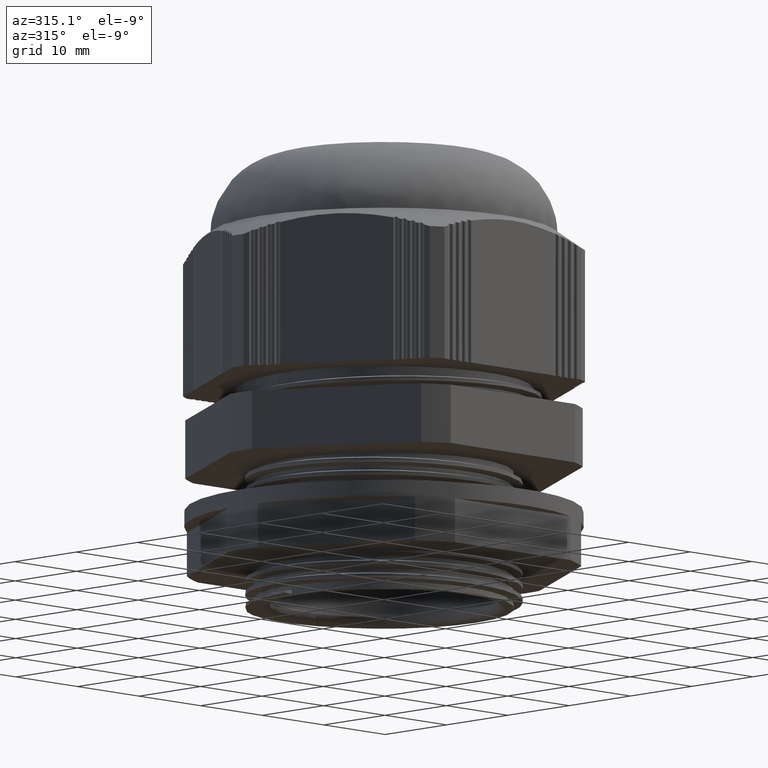
[diagram: clean part render]
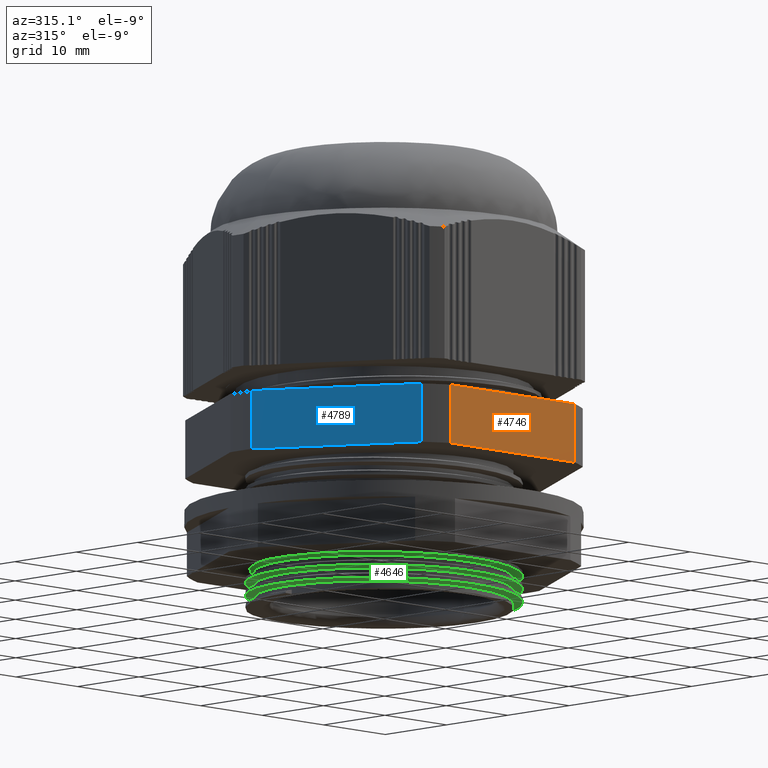
[diagram: same view with three faces highlighted in distinct colors, each labeled with its STEP entity id]
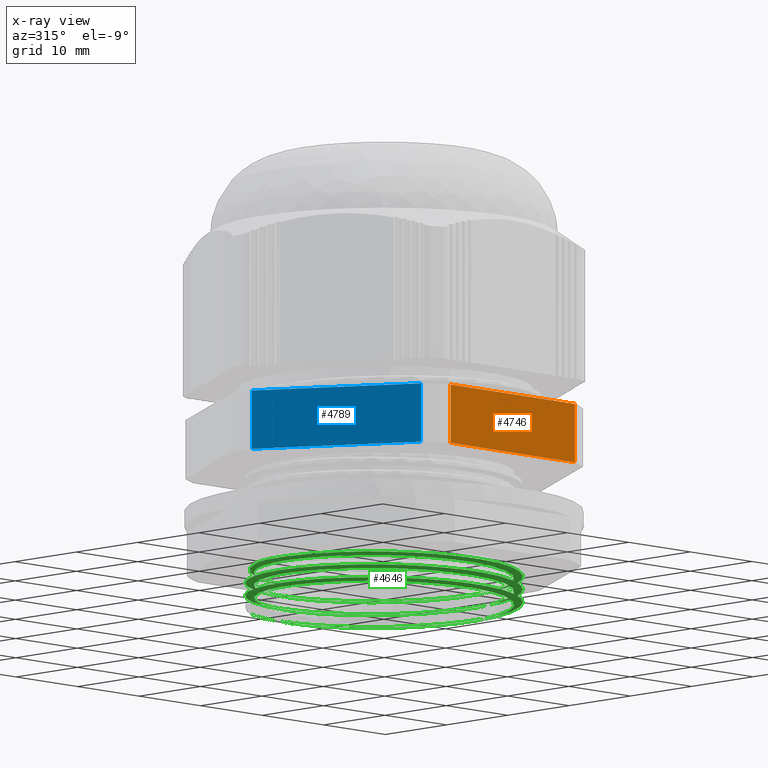
[diagram: x-ray of the same camera — body ghosted, the three highlighted faces saturated]
A machine part, auxiliary view with three faces highlighted in distinct colors.
The next image is the same camera in x-ray (body ghosted, the three faces saturated) — at least one of them is partly hidden behind the body in this view.
Their STEP definitions:

[orange] entity #4746 — the highlighted planar face has unit normal (0, 1, -0).
#953 = EDGE_LOOP ( 'NONE', ( #6261, #6277, #6251, #6265 ) ) ;
#1200 = VERTEX_POINT ( 'NONE', #6722 ) ;
#1500 = VERTEX_POINT ( 'NONE', #7016 ) ;
#1515 = VERTEX_POINT ( 'NONE', #6987 ) ;
#1538 = VERTEX_POINT ( 'NONE', #6997 ) ;
#2654 = VECTOR ( 'NONE', #7256, 1000.000000000000000 ) ;
#2845 = AXIS2_PLACEMENT_3D ( 'NONE', #11000, #11001, #11013 ) ;
#3039 = VECTOR ( 'NONE', #12544, 1000.000000000000000 ) ;
#3040 = VECTOR ( 'NONE', #12497, 1000.000000000000000 ) ;
#3051 = VECTOR ( 'NONE', #12517, 1000.000000000000000 ) ;
#4569 = EDGE_CURVE ( 'NONE', #1515, #1200, #7307, .T. ) ;
#4746 = ADVANCED_FACE ( 'NONE', ( #10999 ), #11012, .F. ) ;
#4895 = EDGE_CURVE ( 'NONE', #1538, #1500, #12504, .T. ) ;
#4900 = EDGE_CURVE ( 'NONE', #1538, #1200, #12501, .T. ) ;
#4913 = EDGE_CURVE ( 'NONE', #1500, #1515, #12547, .T. ) ;
#6251 = ORIENTED_EDGE ( 'NONE', *, *, #4900, .T. ) ;
#6261 = ORIENTED_EDGE ( 'NONE', *, *, #4913, .F. ) ;
#6265 = ORIENTED_EDGE ( 'NONE', *, *, #4569, .F. ) ;
#6277 = ORIENTED_EDGE ( 'NONE', *, *, #4895, .F. ) ;
#6722 = CARTESIAN_POINT ( 'NONE',  ( 10.09405765784998900, -21.00000000000000000, 15.79999999999999900 ) ) ;
#6987 = CARTESIAN_POINT ( 'NONE',  ( 10.09405765784998700, -21.00000000000000000, 22.59999999999999800 ) ) ;
#6997 = CARTESIAN_POINT ( 'NONE',  ( -10.09405765784999600, -20.99999999999999600, 15.79999999999999900 ) ) ;
#7016 = CARTESIAN_POINT ( 'NONE',  ( -10.09405765785000000, -20.99999999999999600, 22.59999999999999800 ) ) ;
#7256 = DIRECTION ( 'NONE',  ( -0.0000000000000000000, -0.0000000000000000000, -1.000000000000000000 ) ) ;
#7299 = CARTESIAN_POINT ( 'NONE',  ( 10.09405765784998200, -21.00000000000000400, 12.49999999999999800 ) ) ;
#7307 = LINE ( 'NONE', #7299, #2654 ) ;
#10999 = FACE_OUTER_BOUND ( 'NONE', #953, .T. ) ;
#11000 = CARTESIAN_POINT ( 'NONE',  ( -12.12435565298214600, -20.99999999999999600, 22.50000000000000000 ) ) ;
#11001 = DIRECTION ( 'NONE',  ( 1.430775808321103700E-016, 1.000000000000000000, -0.0000000000000000000 ) ) ;
#11012 = PLANE ( 'NONE',  #2845 ) ;
#11013 = DIRECTION ( 'NONE',  ( -1.000000000000000000, 1.430775808321103700E-016, 0.0000000000000000000 ) ) ;
#12489 = CARTESIAN_POINT ( 'NONE',  ( -10.09405765784999800, -20.99999999999999600, 22.50000000000000000 ) ) ;
#12496 = CARTESIAN_POINT ( 'NONE',  ( 24.24871130596427800, -20.99999999999999600, 15.79999999999999900 ) ) ;
#12497 = DIRECTION ( 'NONE',  ( 1.000000000000000000, 0.0000000000000000000, -0.0000000000000000000 ) ) ;
#12501 = LINE ( 'NONE', #12496, #3040 ) ;
#12504 = LINE ( 'NONE', #12489, #3051 ) ;
#12517 = DIRECTION ( 'NONE',  ( 0.0000000000000000000, 0.0000000000000000000, 1.000000000000000000 ) ) ;
#12544 = DIRECTION ( 'NONE',  ( 1.000000000000000000, -1.430775808321103700E-016, -0.0000000000000000000 ) ) ;
#12547 = LINE ( 'NONE', #12549, #3039 ) ;
#12549 = CARTESIAN_POINT ( 'NONE',  ( -12.12435565298214600, -20.99999999999999600, 22.59999999999999800 ) ) ;

[blue] entity #4789 — the highlighted planar face has unit normal (0.866, 0.5, -0).
#941 = EDGE_LOOP ( 'NONE', ( #6228, #6240, #6278, #6234 ) ) ;
#1183 = VERTEX_POINT ( 'NONE', #6726 ) ;
#1492 = VERTEX_POINT ( 'NONE', #7002 ) ;
#1495 = VERTEX_POINT ( 'NONE', #6985 ) ;
#1527 = VERTEX_POINT ( 'NONE', #7015 ) ;
#2632 = VECTOR ( 'NONE', #7040, 1000.000000000000000 ) ;
#2694 = VECTOR ( 'NONE', #7217, 1000.000000000000000 ) ;
#2913 = AXIS2_PLACEMENT_3D ( 'NONE', #11748, #11705, #11736 ) ;
#3027 = VECTOR ( 'NONE', #12545, 1000.000000000000000 ) ;
#3052 = VECTOR ( 'NONE', #12619, 1000.000000000000100 ) ;
#4527 = EDGE_CURVE ( 'NONE', #1492, #1183, #7037, .T. ) ;
#4561 = EDGE_CURVE ( 'NONE', #1495, #1492, #7166, .T. ) ;
#4789 = ADVANCED_FACE ( 'NONE', ( #11721 ), #11737, .F. ) ;
#4909 = EDGE_CURVE ( 'NONE', #1527, #1495, #12498, .T. ) ;
#4922 = EDGE_CURVE ( 'NONE', #1527, #1183, #12603, .T. ) ;
#6228 = ORIENTED_EDGE ( 'NONE', *, *, #4561, .F. ) ;
#6234 = ORIENTED_EDGE ( 'NONE', *, *, #4527, .F. ) ;
#6240 = ORIENTED_EDGE ( 'NONE', *, *, #4909, .F. ) ;
#6278 = ORIENTED_EDGE ( 'NONE', *, *, #4922, .T. ) ;
#6726 = CARTESIAN_POINT ( 'NONE',  ( -13.13950465054824000, -19.24171035896293000, 15.79999999999999900 ) ) ;
#6985 = CARTESIAN_POINT ( 'NONE',  ( -23.23356230839820900, -1.758289641037067000, 22.59999999999999800 ) ) ;
#7002 = CARTESIAN_POINT ( 'NONE',  ( -13.13950465054822900, -19.24171035896293300, 22.59999999999999800 ) ) ;
#7015 = CARTESIAN_POINT ( 'NONE',  ( -23.23356230839820900, -1.758289641037069200, 15.80000000000000100 ) ) ;
#7037 = LINE ( 'NONE', #7053, #2632 ) ;
#7040 = DIRECTION ( 'NONE',  ( -0.0000000000000000000, -0.0000000000000000000, -1.000000000000000000 ) ) ;
#7053 = CARTESIAN_POINT ( 'NONE',  ( -13.13950465054823600, -19.24171035896293000, 12.49999999999999800 ) ) ;
#7166 = LINE ( 'NONE', #7171, #2694 ) ;
#7171 = CARTESIAN_POINT ( 'NONE',  ( -24.24871130596428900, -3.432615242920112400E-015, 22.59999999999999800 ) ) ;
#7217 = DIRECTION ( 'NONE',  ( 0.5000000000000001100, -0.8660254037844386000, -0.0000000000000000000 ) ) ;
#11705 = DIRECTION ( 'NONE',  ( 0.8660254037844386000, 0.5000000000000001100, -0.0000000000000000000 ) ) ;
#11721 = FACE_OUTER_BOUND ( 'NONE', #941, .T. ) ;
#11736 = DIRECTION ( 'NONE',  ( -0.5000000000000001100, 0.8660254037844386000, 0.0000000000000000000 ) ) ;
#11737 = PLANE ( 'NONE',  #2913 ) ;
#11748 = CARTESIAN_POINT ( 'NONE',  ( -24.24871130596428900, -3.432615242920112400E-015, 22.50000000000000000 ) ) ;
#12498 = LINE ( 'NONE', #12512, #3027 ) ;
#12512 = CARTESIAN_POINT ( 'NONE',  ( -23.23356230839820900, -1.758289641037065400, 22.50000000000000000 ) ) ;
#12545 = DIRECTION ( 'NONE',  ( 0.0000000000000000000, 0.0000000000000000000, 1.000000000000000000 ) ) ;
#12603 = LINE ( 'NONE', #12613, #3052 ) ;
#12613 = CARTESIAN_POINT ( 'NONE',  ( -23.23356230839820600, -1.758289641037065000, 15.79999999999999900 ) ) ;
#12619 = DIRECTION ( 'NONE',  ( 0.4999999999999997200, -0.8660254037844388200, 0.0000000000000000000 ) ) ;

[green] entity #4646 — the highlighted face is a freeform B-spline surface patch.
#168 = VERTEX_POINT ( 'NONE', #4327 ) ;
#215 = VERTEX_POINT ( 'NONE', #4389 ) ;
#220 = VERTEX_POINT ( 'NONE', #4391 ) ;
#241 = VERTEX_POINT ( 'NONE', #4465 ) ;
#260 = VERTEX_POINT ( 'NONE', #4421 ) ;
#270 = VERTEX_POINT ( 'NONE', #4496 ) ;
#289 = VERTEX_POINT ( 'NONE', #4481 ) ;
#319 = VERTEX_POINT ( 'NONE', #4238 ) ;
#498 = EDGE_CURVE ( 'NONE', #241, #215, #14680, .T. ) ;
#526 = EDGE_CURVE ( 'NONE', #270, #319, #14693, .T. ) ;
#549 = EDGE_CURVE ( 'NONE', #220, #289, #14698, .T. ) ;
#569 = EDGE_CURVE ( 'NONE', #168, #220, #14684, .T. ) ;
#590 = EDGE_CURVE ( 'NONE', #260, #270, #14695, .T. ) ;
#600 = EDGE_CURVE ( 'NONE', #319, #241, #14697, .T. ) ;
#602 = EDGE_CURVE ( 'NONE', #289, #260, #14691, .T. ) ;
#957 = EDGE_LOOP ( 'NONE', ( #10286, #10290, #10242, #10335, #10341, #10339, #10314, #10321, #10273, #10263 ) ) ;
#1173 = VERTEX_POINT ( 'NONE', #6757 ) ;
#1224 = VERTEX_POINT ( 'NONE', #6823 ) ;
#3505 = CARTESIAN_POINT ( 'NONE',  ( 7.156813013094179600, 13.18256528508794600, -3.328138787037815000E-016 ) ) ;
#3514 = CARTESIAN_POINT ( 'NONE',  ( 9.068484187372899200, 12.14471924822353100, 0.03533142820378568800 ) ) ;
#3519 = CARTESIAN_POINT ( 'NONE',  ( 10.60660171779821700, 10.60660171779821700, 0.06815306403442275600 ) ) ;
#3526 = CARTESIAN_POINT ( 'NONE',  ( 15.00000000000000000, 1.836970198721029600E-015, 0.2556530640344232300 ) ) ;
#3535 = CARTESIAN_POINT ( 'NONE',  ( 14.99999999999999500, 6.213203435596425600, 0.1619030640344227000 ) ) ;
#3550 = CARTESIAN_POINT ( 'NONE',  ( 6.213203435596423000, 14.99999999999999600, 1.474403064034422600 ) ) ;
#3552 = CARTESIAN_POINT ( 'NONE',  ( -15.00000000000000000, 0.0000000000000000000, 1.005653064034423400 ) ) ;
#3554 = CARTESIAN_POINT ( 'NONE',  ( 10.60660171779821500, 10.60660171779821500, 1.568153064034422300 ) ) ;
#3565 = CARTESIAN_POINT ( 'NONE',  ( -9.184850993605146000E-016, 14.99999999999999600, 1.380653064034422100 ) ) ;
#3570 = CARTESIAN_POINT ( 'NONE',  ( 15.00000000000000900, 6.213203435596414100, 1.661903064034422600 ) ) ;
#3578 = CARTESIAN_POINT ( 'NONE',  ( -14.99999999999999600, 6.213203435596423900, 1.099403064034422600 ) ) ;
#3582 = CARTESIAN_POINT ( 'NONE',  ( -6.213203435596423900, 14.99999999999999600, 1.286903064034422800 ) ) ;
#3583 = CARTESIAN_POINT ( 'NONE',  ( -10.60660171779821500, 10.60660171779821500, 1.193153064034422100 ) ) ;
#3587 = CARTESIAN_POINT ( 'NONE',  ( 15.00000000000000000, 1.836970198721029600E-015, 1.755653064034423700 ) ) ;
#3591 = CARTESIAN_POINT ( 'NONE',  ( 2.755455298081544000E-015, -14.99999999999999600, 3.630653064034422300 ) ) ;
#3593 = CARTESIAN_POINT ( 'NONE',  ( 10.60660171779821500, -10.60660171779821500, 3.443153064034422300 ) ) ;
#3595 = CARTESIAN_POINT ( 'NONE',  ( 15.00000000000000000, 1.836970198721029600E-015, 3.255653064034424100 ) ) ;
#3602 = CARTESIAN_POINT ( 'NONE',  ( -15.00000000000000000, 0.0000000000000000000, 4.005653064034423700 ) ) ;
#3610 = CARTESIAN_POINT ( 'NONE',  ( 6.213203435596433600, -14.99999999999999300, 3.536903064034422800 ) ) ;
#3615 = CARTESIAN_POINT ( 'NONE',  ( 14.99999999999999800, -6.213203435596422100, 3.349403064034422800 ) ) ;
#3618 = CARTESIAN_POINT ( 'NONE',  ( -6.213203435596428300, -14.99999999999999500, 3.724403064034422800 ) ) ;
#3631 = CARTESIAN_POINT ( 'NONE',  ( -10.60660171779821300, -10.60660171779821500, 3.818153064034422800 ) ) ;
#3633 = CARTESIAN_POINT ( 'NONE',  ( -14.99999999999999300, -6.213203435596434500, 3.911903064034422300 ) ) ;
#3696 = CARTESIAN_POINT ( 'NONE',  ( -15.00000000000000000, 0.0000000000000000000, 4.005653064034423700 ) ) ;
#3713 = CARTESIAN_POINT ( 'NONE',  ( -3.558268107064206400, 14.57184710591796400, 4.324286988929949300 ) ) ;
#3714 = CARTESIAN_POINT ( 'NONE',  ( -14.99999999999999300, 6.213203435596423000, 4.099403064034421900 ) ) ;
#3725 = CARTESIAN_POINT ( 'NONE',  ( -7.637440753727659600, 13.57576268186876500, 4.256511499236913700 ) ) ;
#3730 = CARTESIAN_POINT ( 'NONE',  ( -10.60660171779821700, 10.60660171779821700, 4.193153064034422800 ) ) ;
#3778 = CARTESIAN_POINT ( 'NONE',  ( 15.00000000000000000, 1.836970198721029600E-015, 1.755653064034423700 ) ) ;
#3781 = CARTESIAN_POINT ( 'NONE',  ( 14.99999999999998800, -6.213203435596434500, 1.849403064034422600 ) ) ;
#3785 = CARTESIAN_POINT ( 'NONE',  ( 10.60660171779821500, -10.60660171779821500, 1.943153064034422600 ) ) ;
#3789 = CARTESIAN_POINT ( 'NONE',  ( -15.00000000000000000, 0.0000000000000000000, 2.505653064034423200 ) ) ;
#3796 = CARTESIAN_POINT ( 'NONE',  ( 6.213203435596433600, -14.99999999999999500, 2.036903064034422300 ) ) ;
#3799 = CARTESIAN_POINT ( 'NONE',  ( 2.755455298081544000E-015, -14.99999999999999600, 2.130653064034422300 ) ) ;
#3805 = CARTESIAN_POINT ( 'NONE',  ( -10.60660171779821300, -10.60660171779821500, 2.318153064034422300 ) ) ;
#3811 = CARTESIAN_POINT ( 'NONE',  ( -6.213203435596428300, -14.99999999999999600, 2.224403064034422800 ) ) ;
#3812 = CARTESIAN_POINT ( 'NONE',  ( -15.00000000000007600, -6.213203435596353700, 2.411903064034425000 ) ) ;
#3825 = CARTESIAN_POINT ( 'NONE',  ( -6.213203435596428300, -14.99999999999999500, 0.7244030640344222300 ) ) ;
#3831 = CARTESIAN_POINT ( 'NONE',  ( 15.00000000000000000, 1.836970198721029600E-015, 0.2556530640344232300 ) ) ;
#3833 = CARTESIAN_POINT ( 'NONE',  ( 6.213203435596434500, -14.99999999999999300, 0.5369030640344224500 ) ) ;
#3834 = CARTESIAN_POINT ( 'NONE',  ( -15.00000000000000000, 0.0000000000000000000, 2.505653064034423200 ) ) ;
#3836 = CARTESIAN_POINT ( 'NONE',  ( 10.60660171779821500, -10.60660171779821500, 0.4431530640344222800 ) ) ;
#3839 = CARTESIAN_POINT ( 'NONE',  ( 6.213203435596423000, 14.99999999999999600, 2.974403064034422800 ) ) ;
#3843 = CARTESIAN_POINT ( 'NONE',  ( -15.00000000000000000, 0.0000000000000000000, 1.005653064034423400 ) ) ;
#3852 = CARTESIAN_POINT ( 'NONE',  ( 10.60660171779821300, 10.60660171779821300, 3.068153064034422300 ) ) ;
#3854 = CARTESIAN_POINT ( 'NONE',  ( -10.60660171779821300, 10.60660171779821300, 2.693153064034421900 ) ) ;
#3857 = CARTESIAN_POINT ( 'NONE',  ( -9.184850993605146000E-016, 14.99999999999999500, 2.880653064034422300 ) ) ;
#3859 = CARTESIAN_POINT ( 'NONE',  ( 15.00000000000000000, -6.213203435596423000, 0.3494030640344222800 ) ) ;
#3861 = CARTESIAN_POINT ( 'NONE',  ( 14.99999999999999600, 6.213203435596427400, 3.161903064034422300 ) ) ;
#3862 = CARTESIAN_POINT ( 'NONE',  ( 2.755455298081544000E-015, -14.99999999999999800, 0.6306530640344225600 ) ) ;
#3867 = CARTESIAN_POINT ( 'NONE',  ( -14.99999999999991700, 6.213203435596506500, 2.599403064034424100 ) ) ;
#3869 = CARTESIAN_POINT ( 'NONE',  ( -14.99999999999999300, -6.213203435596435400, 0.9119030640344222300 ) ) ;
#3871 = CARTESIAN_POINT ( 'NONE',  ( -6.213203435596425600, 14.99999999999999600, 2.786903064034422800 ) ) ;
#3872 = CARTESIAN_POINT ( 'NONE',  ( -10.60660171779821300, -10.60660171779821500, 0.8181530640344227800 ) ) ;
#3876 = CARTESIAN_POINT ( 'NONE',  ( 15.00000000000000000, 1.836970198721029600E-015, 3.255653064034424100 ) ) ;
#4238 = CARTESIAN_POINT ( 'NONE',  ( -15.00000000000000000, 0.0000000000000000000, 1.005653064034423400 ) ) ;
#4327 = CARTESIAN_POINT ( 'NONE',  ( -3.558268107064206400, 14.57184710591796400, 4.324286988929949300 ) ) ;
#4389 = CARTESIAN_POINT ( 'NONE',  ( 7.156813013094179600, 13.18256528508794600, -3.328138787037815000E-016 ) ) ;
#4391 = CARTESIAN_POINT ( 'NONE',  ( -15.00000000000000000, 0.0000000000000000000, 4.005653064034423700 ) ) ;
#4421 = CARTESIAN_POINT ( 'NONE',  ( -15.00000000000000000, 0.0000000000000000000, 2.505653064034423200 ) ) ;
#4465 = CARTESIAN_POINT ( 'NONE',  ( 15.00000000000000000, 1.836970198721029600E-015, 0.2556530640344232300 ) ) ;
#4481 = CARTESIAN_POINT ( 'NONE',  ( 15.00000000000000000, 1.836970198721029600E-015, 3.255653064034424100 ) ) ;
#4496 = CARTESIAN_POINT ( 'NONE',  ( 15.00000000000000000, 1.836970198721029600E-015, 1.755653064034423700 ) ) ;
#4646 = ADVANCED_FACE ( 'NONE', ( #8652 ), #6851, .T. ) ;
#4824 = EDGE_CURVE ( 'NONE', #168, #1173, #11932, .T. ) ;
#4828 = EDGE_CURVE ( 'NONE', #1173, #1224, #6365, .T. ) ;
#4830 = EDGE_CURVE ( 'NONE', #215, #1224, #11960, .T. ) ;
#6365 =( BOUNDED_CURVE ( )  B_SPLINE_CURVE ( 2, ( #12007, #12142, #12086, #12087, #12123, #12100, #12121, #12134, #12103, #12136, #12102, #12143, #12144, #12125, #12110, #12140, #12116, #12129, #12122, #12145, #12147, #12117, #12101, #12089, #12104, #12135, #12092, #12126, #12094, #12137, #12124, #12105, #12130, #12118, #12095, #12098, #12099, #12127, #12106, #12107, #12111, #12112, #12119, #12113, #12114, #12131, #12132, #12133, #12213 ),
 .UNSPECIFIED., .F., .T. ) 
 B_SPLINE_CURVE_WITH_KNOTS ( ( 3, 2, 2, 2, 2, 2, 2, 2, 2, 2, 2, 2, 2, 2, 2, 2, 2, 2, 2, 2, 2, 2, 2, 2, 3 ),
 ( 0.6786667440834874800, 0.6818181818181818800, 0.6931818181818182300, 0.7045454545454545900, 0.7159090909090909400, 0.7272727272727272900, 0.7386363636363636500, 0.7500000000000000000, 0.7613636363636364600, 0.7727272727272727100, 0.7840909090909091700, 0.7954545454545455300, 0.8068181818181818800, 0.8181818181818182300, 0.8295454545454545900, 0.8409090909090909400, 0.8522727272727272900, 0.8636363636363636500, 0.8750000000000000000, 0.8863636363636364600, 0.8977272727272728200, 0.9090909090909091700, 0.9204545454545455300, 0.9318181818181818800, 0.9407389694966823400 ),
 .UNSPECIFIED. ) 
 CURVE ( )  GEOMETRIC_REPRESENTATION_ITEM ( )  RATIONAL_B_SPLINE_CURVE ( ( 0.9694884013673703600, 0.9788897756008674300, 1.000000000000000000, 0.9238795325112867400, 1.000000000000000000, 0.9238795325112867400, 1.000000000000000000, 0.9238795325112867400, 1.000000000000000000, 0.9238795325112867400, 1.000000000000000000, 0.9238795325112867400, 1.000000000000000000, 0.9238795325112867400, 1.000000000000000000, 0.9238795325112867400, 1.000000000000000000, 0.9238795325112867400, 1.000000000000000000, 0.9238795325112867400, 1.000000000000000000, 0.9238795325112867400, 1.000000000000000000, 0.9238795325112867400, 1.000000000000000000, 0.9238795325112867400, 1.000000000000000000, 0.9238795325112867400, 1.000000000000000000, 0.9238795325112867400, 1.000000000000000000, 0.9238795325112867400, 1.000000000000000000, 0.9238795325112867400, 1.000000000000000000, 0.9238795325112867400, 1.000000000000000000, 0.9238795325112867400, 1.000000000000000000, 0.9238795325112867400, 1.000000000000000000, 0.9238795325112867400, 1.000000000000000000, 0.9238795325112867400, 1.000000000000000000, 0.9238795325112867400, 1.000000000000000000, 0.9402432014959591900, 0.9743080802689794200 ) ) 
 REPRESENTATION_ITEM ( '' )  );
#6757 = CARTESIAN_POINT ( 'NONE',  ( -15.62823415482001200, 3.429037357935487600, 4.324286988929948400 ) ) ;
#6823 = CARTESIAN_POINT ( 'NONE',  ( -9.277253239051070500, 13.03581882117562100, 5.597886781035676000E-014 ) ) ;
#6851 =( BOUNDED_SURFACE ( )  B_SPLINE_SURFACE ( 1, 2, ( 
 ( #8656, #8703, #8719, #8681, #8680, #8678, #8701, #8672, #8720, #8682, #8713, #8688, #8723, #8699, #8698, #8727, #8714, #8724, #8677, #8689, #8696, #8709, #8711, #8693, #8700, #8673, #8706, #8674, #8683, #8725, #8684, #8715, #8675, #8705, #8676, #8716, #8721, #8669, #8726, #8686, #8722, #8728, #8729, #8707, #8679, #8730, #8670, #8731, #8685, #8687, #8718, #8708, #8697, #8668, #8690, #8712, #8717, #8671, #8691, #8692, #8710, #8694, #8702, #8695, #8704, #8737, #8732, #8745, #8792, #8740, #8766, #8778, #8743, #8744, #8785, #8790, #8791, #8764, #8759, #8793, #8794, #8784, #8780, #8768, #8783, #8781, #8770, #8765, #8752, #8771, #8779, #8795, #8782, #8758, #8733, #8767, #8734, #8738, #8786, #8748, #8735, #8742, #8787, #8739, #8753, #8788, #8754, #8760, #8755, #8762, #8776, #8736, #8741, #8774, #8789, #8746, #8769, #8747, #8772, #8749, #8761, #8773, #8775, #8750, #8777, #8751, #8756, #8757, #8763, #8808, #8806, #8829, #8800, #8847, #8809, #8841, #8816, #8851, #8827, #8826, #8855, #8842, #8852, #8805, #8817, #8824, #8837, #8839, #8821, #8828, #8801, #8834, #8802, #8810, #8853, #8811, #8843, #8803, #8833, #8804, #8844, #8848, #8797, #8854, #8814, #8849, #8856, #8857, #8835 ),
 ( #8812, #8846, #8836, #8825, #8859, #8807, #8840, #8845, #8798, #8815, #8850, #8838, #8858, #8830, #8823, #8813, #8818, #8796, #8819, #8799, #8820, #8831, #8822, #8832, #8871, #8913, #8918, #8919, #8892, #8887, #8921, #8911, #8893, #8885, #8873, #8872, #8870, #8894, #8864, #8912, #8874, #8905, #8880, #8915, #8891, #8890, #8920, #8906, #8916, #8869, #8881, #8888, #8901, #8903, #8886, #8895, #8865, #8898, #8866, #8875, #8917, #8876, #8907, #8867, #8897, #8868, #8908, #8914, #8861, #8922, #8878, #8923, #8860, #8862, #8899, #8877, #8863, #8879, #8882, #8883, #8884, #8910, #8900, #8889, #8896, #8902, #8904, #8909, #8925, #8942, #8975, #8963, #8974, #8956, #8951, #8936, #8929, #8924, #8937, #8984, #8932, #8958, #8970, #8935, #8938, #8977, #8982, #8983, #8957, #8952, #8985, #8976, #8959, #8949, #8986, #8978, #8972, #8960, #8979, #8973, #8962, #8961, #8944, #8964, #8971, #8987, #8980, #8950, #8926, #8965, #8927, #8930, #8981, #8940, #8928, #8934, #8931, #8933, #8945, #8939, #8946, #8953, #8947, #8954, #8968, #8941, #8943, #8966, #8948, #8955, #8967, #8969, #9022, #9031, #9010, #9024, #9017, #9003, #9021, #9037, #9019, #9033, #9011, #9013, #9005, #9007, #8998, #9028, #9015 ) ),
 .UNSPECIFIED., .F., .F., .F. ) 
 B_SPLINE_SURFACE_WITH_KNOTS ( ( 2, 2 ),
 ( 3, 2, 2, 2, 2, 2, 2, 2, 2, 2, 2, 2, 2, 2, 2, 2, 2, 2, 2, 2, 2, 2, 2, 2, 2, 2, 2, 2, 2, 2, 2, 2, 2, 2, 2, 2, 2, 2, 2, 2, 2, 2, 2, 2, 2, 2, 2, 2, 2, 2, 2, 2, 2, 2, 2, 2, 2, 2, 2, 2, 2, 2, 2, 2, 2, 2, 2, 2, 2, 2, 2, 2, 2, 2, 2, 2, 2, 2, 2, 2, 2, 2, 2, 2, 3 ),
 ( 0.0000000000000000000, 1.000000000000000000 ),
 ( 0.0000000000000000000, 0.01136363636363636400, 0.02272727272727272800, 0.03409090909090908800, 0.04545454545454545600, 0.05681818181818181600, 0.06818181818181817700, 0.07954545454545454400, 0.09090909090909091200, 0.1022727272727272800, 0.1136363636363636300, 0.1250000000000000000, 0.1363636363636363500, 0.1477272727272727300, 0.1590909090909090900, 0.1704545454545454400, 0.1818181818181818200, 0.1931818181818181800, 0.2045454545454545600, 0.2159090909090909100, 0.2272727272727272700, 0.2386363636363636500, 0.2500000000000000000, 0.2613636363636363500, 0.2727272727272727100, 0.2840909090909091200, 0.2954545454545454700, 0.3068181818181818200, 0.3181818181818181800, 0.3295454545454545300, 0.3409090909090908800, 0.3522727272727272900, 0.3636363636363636500, 0.3750000000000000000, 0.3863636363636363500, 0.3977272727272727100, 0.4090909090909091200, 0.4204545454545454700, 0.4318181818181818200, 0.4431818181818181800, 0.4545454545454545300, 0.4659090909090908800, 0.4772727272727272900, 0.4886363636363636500, 0.5000000000000000000, 0.5113636363636363500, 0.5227272727272727100, 0.5340909090909090600, 0.5454545454545454100, 0.5568181818181817700, 0.5681818181818182300, 0.5795454545454545900, 0.5909090909090909400, 0.6022727272727272900, 0.6136363636363636500, 0.6250000000000000000, 0.6363636363636363500, 0.6477272727272727100, 0.6590909090909090600, 0.6704545454545454100, 0.6818181818181817700, 0.6931818181818182300, 0.7045454545454545900, 0.7159090909090909400, 0.7272727272727272900, 0.7386363636363636500, 0.7500000000000000000, 0.7613636363636363500, 0.7727272727272727100, 0.7840909090909090600, 0.7954545454545454100, 0.8068181818181817700, 0.8181818181818182300, 0.8295454545454545900, 0.8409090909090909400, 0.8522727272727272900, 0.8636363636363636500, 0.8750000000000000000, 0.8863636363636363500, 0.8977272727272727100, 0.9090909090909090600, 0.9204545454545454100, 0.9318181818181817700, 0.9431818181818182300, 0.9545454545454545900 ),
 .UNSPECIFIED. ) 
 GEOMETRIC_REPRESENTATION_ITEM ( )  RATIONAL_B_SPLINE_SURFACE ( (
 ( 1.000000000000000000, 0.9238795325112867400, 1.000000000000000000, 0.9238795325112867400, 1.000000000000000000, 0.9238795325112867400, 1.000000000000000000, 0.9238795325112867400, 1.000000000000000000, 0.9238795325112867400, 1.000000000000000000, 0.9238795325112867400, 1.000000000000000000, 0.9238795325112867400, 1.000000000000000000, 0.9238795325112867400, 1.000000000000000000, 0.9238795325112867400, 1.000000000000000000, 0.9238795325112867400, 1.000000000000000000, 0.9238795325112867400, 1.000000000000000000, 0.9238795325112867400, 1.000000000000000000, 0.9238795325112867400, 1.000000000000000000, 0.9238795325112867400, 1.000000000000000000, 0.9238795325112867400, 1.000000000000000000, 0.9238795325112867400, 1.000000000000000000, 0.9238795325112867400, 1.000000000000000000, 0.9238795325112867400, 1.000000000000000000, 0.9238795325112867400, 1.000000000000000000, 0.9238795325112867400, 1.000000000000000000, 0.9238795325112867400, 1.000000000000000000, 0.9238795325112867400, 1.000000000000000000, 0.9238795325112867400, 1.000000000000000000, 0.9238795325112867400, 1.000000000000000000, 0.9238795325112867400, 1.000000000000000000, 0.9238795325112867400, 1.000000000000000000, 0.9238795325112867400, 1.000000000000000000, 0.9238795325112867400, 1.000000000000000000, 0.9238795325112867400, 1.000000000000000000, 0.9238795325112867400, 1.000000000000000000, 0.9238795325112867400, 1.000000000000000000, 0.9238795325112867400, 1.000000000000000000, 0.9238795325112867400, 1.000000000000000000, 0.9238795325112867400, 1.000000000000000000, 0.9238795325112867400, 1.000000000000000000, 0.9238795325112867400, 1.000000000000000000, 0.9238795325112867400, 1.000000000000000000, 0.9238795325112867400, 1.000000000000000000, 0.9238795325112867400, 1.000000000000000000, 0.9238795325112867400, 1.000000000000000000, 0.9238795325112867400, 1.000000000000000000, 0.9238795325112867400, 1.000000000000000000, 0.9238795325112867400, 1.000000000000000000, 0.9238795325112867400, 1.000000000000000000, 0.9238795325112867400, 1.000000000000000000, 0.9238795325112867400, 1.000000000000000000, 0.9238795325112867400, 1.000000000000000000, 0.9238795325112867400, 1.000000000000000000, 0.9238795325112867400, 1.000000000000000000, 0.9238795325112867400, 1.000000000000000000, 0.9238795325112867400, 1.000000000000000000, 0.9238795325112867400, 1.000000000000000000, 0.9238795325112867400, 1.000000000000000000, 0.9238795325112867400, 1.000000000000000000, 0.9238795325112867400, 1.000000000000000000, 0.9238795325112867400, 1.000000000000000000, 0.9238795325112867400, 1.000000000000000000, 0.9238795325112867400, 1.000000000000000000, 0.9238795325112867400, 1.000000000000000000, 0.9238795325112867400, 1.000000000000000000, 0.9238795325112867400, 1.000000000000000000, 0.9238795325112867400, 1.000000000000000000, 0.9238795325112867400, 1.000000000000000000, 0.9238795325112867400, 1.000000000000000000, 0.9238795325112867400, 1.000000000000000000, 0.9238795325112867400, 1.000000000000000000, 0.9238795325112867400, 1.000000000000000000, 0.9238795325112867400, 1.000000000000000000, 0.9238795325112867400, 1.000000000000000000, 0.9238795325112867400, 1.000000000000000000, 0.9238795325112867400, 1.000000000000000000, 0.9238795325112867400, 1.000000000000000000, 0.9238795325112867400, 1.000000000000000000, 0.9238795325112867400, 1.000000000000000000, 0.9238795325112867400, 1.000000000000000000, 0.9238795325112867400, 1.000000000000000000, 0.9238795325112867400, 1.000000000000000000, 0.9238795325112867400, 1.000000000000000000, 0.9238795325112867400, 1.000000000000000000, 0.9238795325112867400, 1.000000000000000000, 0.9238795325112867400, 1.000000000000000000, 0.9238795325112867400, 1.000000000000000000, 0.9238795325112867400, 1.000000000000000000, 0.9238795325112867400, 1.000000000000000000),
 ( 1.000000000000000000, 0.9238795325112867400, 1.000000000000000000, 0.9238795325112867400, 1.000000000000000000, 0.9238795325112867400, 1.000000000000000000, 0.9238795325112867400, 1.000000000000000000, 0.9238795325112867400, 1.000000000000000000, 0.9238795325112867400, 1.000000000000000000, 0.9238795325112867400, 1.000000000000000000, 0.9238795325112867400, 1.000000000000000000, 0.9238795325112867400, 1.000000000000000000, 0.9238795325112867400, 1.000000000000000000, 0.9238795325112867400, 1.000000000000000000, 0.9238795325112867400, 1.000000000000000000, 0.9238795325112867400, 1.000000000000000000, 0.9238795325112867400, 1.000000000000000000, 0.9238795325112867400, 1.000000000000000000, 0.9238795325112867400, 1.000000000000000000, 0.9238795325112867400, 1.000000000000000000, 0.9238795325112867400, 1.000000000000000000, 0.9238795325112867400, 1.000000000000000000, 0.9238795325112867400, 1.000000000000000000, 0.9238795325112867400, 1.000000000000000000, 0.9238795325112867400, 1.000000000000000000, 0.9238795325112867400, 1.000000000000000000, 0.9238795325112867400, 1.000000000000000000, 0.9238795325112867400, 1.000000000000000000, 0.9238795325112867400, 1.000000000000000000, 0.9238795325112867400, 1.000000000000000000, 0.9238795325112867400, 1.000000000000000000, 0.9238795325112867400, 1.000000000000000000, 0.9238795325112867400, 1.000000000000000000, 0.9238795325112867400, 1.000000000000000000, 0.9238795325112867400, 1.000000000000000000, 0.9238795325112867400, 1.000000000000000000, 0.9238795325112867400, 1.000000000000000000, 0.9238795325112867400, 1.000000000000000000, 0.9238795325112867400, 1.000000000000000000, 0.9238795325112867400, 1.000000000000000000, 0.9238795325112867400, 1.000000000000000000, 0.9238795325112867400, 1.000000000000000000, 0.9238795325112867400, 1.000000000000000000, 0.9238795325112867400, 1.000000000000000000, 0.9238795325112867400, 1.000000000000000000, 0.9238795325112867400, 1.000000000000000000, 0.9238795325112867400, 1.000000000000000000, 0.9238795325112867400, 1.000000000000000000, 0.9238795325112867400, 1.000000000000000000, 0.9238795325112867400, 1.000000000000000000, 0.9238795325112867400, 1.000000000000000000, 0.9238795325112867400, 1.000000000000000000, 0.9238795325112867400, 1.000000000000000000, 0.9238795325112867400, 1.000000000000000000, 0.9238795325112867400, 1.000000000000000000, 0.9238795325112867400, 1.000000000000000000, 0.9238795325112867400, 1.000000000000000000, 0.9238795325112867400, 1.000000000000000000, 0.9238795325112867400, 1.000000000000000000, 0.9238795325112867400, 1.000000000000000000, 0.9238795325112867400, 1.000000000000000000, 0.9238795325112867400, 1.000000000000000000, 0.9238795325112867400, 1.000000000000000000, 0.9238795325112867400, 1.000000000000000000, 0.9238795325112867400, 1.000000000000000000, 0.9238795325112867400, 1.000000000000000000, 0.9238795325112867400, 1.000000000000000000, 0.9238795325112867400, 1.000000000000000000, 0.9238795325112867400, 1.000000000000000000, 0.9238795325112867400, 1.000000000000000000, 0.9238795325112867400, 1.000000000000000000, 0.9238795325112867400, 1.000000000000000000, 0.9238795325112867400, 1.000000000000000000, 0.9238795325112867400, 1.000000000000000000, 0.9238795325112867400, 1.000000000000000000, 0.9238795325112867400, 1.000000000000000000, 0.9238795325112867400, 1.000000000000000000, 0.9238795325112867400, 1.000000000000000000, 0.9238795325112867400, 1.000000000000000000, 0.9238795325112867400, 1.000000000000000000, 0.9238795325112867400, 1.000000000000000000, 0.9238795325112867400, 1.000000000000000000, 0.9238795325112867400, 1.000000000000000000, 0.9238795325112867400, 1.000000000000000000, 0.9238795325112867400, 1.000000000000000000, 0.9238795325112867400, 1.000000000000000000, 0.9238795325112867400, 1.000000000000000000) ) ) 
 REPRESENTATION_ITEM ( '' )  SURFACE ( )  );
#8652 = FACE_OUTER_BOUND ( 'NONE', #957, .T. ) ;
#8656 = CARTESIAN_POINT ( 'NONE',  ( -14.97890247780509100, 0.0000000000000000000, -0.5000000000000001100 ) ) ;
#8668 = CARTESIAN_POINT ( 'NONE',  ( 6.204464555770826500, 14.97890247780508900, 4.468750000000000000 ) ) ;
#8669 = CARTESIAN_POINT ( 'NONE',  ( 6.204464555770826500, 14.97890247780508900, 2.968750000000000000 ) ) ;
#8670 = CARTESIAN_POINT ( 'NONE',  ( -10.59168351678796300, -10.59168351678796300, 3.812500000000000400 ) ) ;
#8671 = CARTESIAN_POINT ( 'NONE',  ( 14.97890247780509500, -6.204464555770825600, 4.843750000000000000 ) ) ;
#8672 = CARTESIAN_POINT ( 'NONE',  ( 14.97890247780508900, 6.204464555770829100, 0.1562499999999999200 ) ) ;
#8673 = CARTESIAN_POINT ( 'NONE',  ( 14.97890247780509500, -6.204464555770825600, 1.843749999999999800 ) ) ;
#8674 = CARTESIAN_POINT ( 'NONE',  ( 6.204464555770837100, -14.97890247780508600, 2.031250000000000000 ) ) ;
#8675 = CARTESIAN_POINT ( 'NONE',  ( -14.97890247780509100, 0.0000000000000000000, 2.500000000000000000 ) ) ;
#8676 = CARTESIAN_POINT ( 'NONE',  ( -10.59168351678796300, 10.59168351678796300, 2.687500000000000000 ) ) ;
#8677 = CARTESIAN_POINT ( 'NONE',  ( -10.59168351678796300, 10.59168351678796300, 1.187499999999999800 ) ) ;
#8678 = CARTESIAN_POINT ( 'NONE',  ( 6.204464555770826500, 14.97890247780508900, -0.03125000000000011100 ) ) ;
#8679 = CARTESIAN_POINT ( 'NONE',  ( 2.751579746127654300E-015, -14.97890247780509100, 3.625000000000000000 ) ) ;
#8680 = CARTESIAN_POINT ( 'NONE',  ( -9.171932487092180900E-016, 14.97890247780509100, -0.1250000000000001100 ) ) ;
#8681 = CARTESIAN_POINT ( 'NONE',  ( -6.204464555770828200, 14.97890247780508900, -0.2187500000000001400 ) ) ;
#8682 = CARTESIAN_POINT ( 'NONE',  ( 14.97890247780509500, -6.204464555770825600, 0.3437499999999998900 ) ) ;
#8683 = CARTESIAN_POINT ( 'NONE',  ( 2.751579746127654300E-015, -14.97890247780509100, 2.125000000000000000 ) ) ;
#8684 = CARTESIAN_POINT ( 'NONE',  ( -10.59168351678796300, -10.59168351678796300, 2.312500000000000000 ) ) ;
#8685 = CARTESIAN_POINT ( 'NONE',  ( -14.97890247780509100, 0.0000000000000000000, 4.000000000000000000 ) ) ;
#8686 = CARTESIAN_POINT ( 'NONE',  ( 14.97890247780508900, 6.204464555770829100, 3.156250000000000400 ) ) ;
#8687 = CARTESIAN_POINT ( 'NONE',  ( -14.97890247780508900, 6.204464555770827300, 4.093749999999999100 ) ) ;
#8688 = CARTESIAN_POINT ( 'NONE',  ( 6.204464555770837100, -14.97890247780508600, 0.5312500000000001100 ) ) ;
#8689 = CARTESIAN_POINT ( 'NONE',  ( -6.204464555770828200, 14.97890247780508900, 1.281250000000000200 ) ) ;
#8690 = CARTESIAN_POINT ( 'NONE',  ( 10.59168351678796300, 10.59168351678796300, 4.562500000000000000 ) ) ;
#8691 = CARTESIAN_POINT ( 'NONE',  ( 10.59168351678796300, -10.59168351678796300, 4.937500000000000000 ) ) ;
#8692 = CARTESIAN_POINT ( 'NONE',  ( 6.204464555770837100, -14.97890247780508600, 5.031249999999999100 ) ) ;
#8693 = CARTESIAN_POINT ( 'NONE',  ( 14.97890247780508900, 6.204464555770829100, 1.656250000000000200 ) ) ;
#8694 = CARTESIAN_POINT ( 'NONE',  ( -6.204464555770830900, -14.97890247780508800, 5.218749999999999100 ) ) ;
#8695 = CARTESIAN_POINT ( 'NONE',  ( -14.97890247780508600, -6.204464555770838000, 5.406250000000000000 ) ) ;
#8696 = CARTESIAN_POINT ( 'NONE',  ( -9.171932487092180900E-016, 14.97890247780509100, 1.375000000000000000 ) ) ;
#8697 = CARTESIAN_POINT ( 'NONE',  ( -9.171932487092180900E-016, 14.97890247780509100, 4.374999999999999100 ) ) ;
#8698 = CARTESIAN_POINT ( 'NONE',  ( -10.59168351678796300, -10.59168351678796300, 0.8125000000000003300 ) ) ;
#8699 = CARTESIAN_POINT ( 'NONE',  ( -6.204464555770830900, -14.97890247780508800, 0.7187499999999998900 ) ) ;
#8700 = CARTESIAN_POINT ( 'NONE',  ( 14.97890247780509100, 1.834386497418436200E-015, 1.750000000000000200 ) ) ;
#8701 = CARTESIAN_POINT ( 'NONE',  ( 10.59168351678796300, 10.59168351678796300, 0.06249999999999994400 ) ) ;
#8702 = CARTESIAN_POINT ( 'NONE',  ( -10.59168351678796300, -10.59168351678796300, 5.312499999999999100 ) ) ;
#8703 = CARTESIAN_POINT ( 'NONE',  ( -14.97890247780508900, 6.204464555770827300, -0.4062500000000004400 ) ) ;
#8704 = CARTESIAN_POINT ( 'NONE',  ( -14.97890247780509100, 0.0000000000000000000, 5.500000000000000000 ) ) ;
#8705 = CARTESIAN_POINT ( 'NONE',  ( -14.97890247780508900, 6.204464555770827300, 2.593750000000000900 ) ) ;
#8706 = CARTESIAN_POINT ( 'NONE',  ( 10.59168351678796300, -10.59168351678796300, 1.937500000000000000 ) ) ;
#8707 = CARTESIAN_POINT ( 'NONE',  ( 6.204464555770837100, -14.97890247780508600, 3.531250000000000000 ) ) ;
#8708 = CARTESIAN_POINT ( 'NONE',  ( -6.204464555770828200, 14.97890247780508900, 4.281250000000001800 ) ) ;
#8709 = CARTESIAN_POINT ( 'NONE',  ( 6.204464555770826500, 14.97890247780508900, 1.468750000000000200 ) ) ;
#8710 = CARTESIAN_POINT ( 'NONE',  ( 2.751579746127654300E-015, -14.97890247780509100, 5.124999999999999100 ) ) ;
#8711 = CARTESIAN_POINT ( 'NONE',  ( 10.59168351678796300, 10.59168351678796300, 1.562500000000000000 ) ) ;
#8712 = CARTESIAN_POINT ( 'NONE',  ( 14.97890247780508900, 6.204464555770829100, 4.656249999999999100 ) ) ;
#8713 = CARTESIAN_POINT ( 'NONE',  ( 10.59168351678796300, -10.59168351678796300, 0.4374999999999998300 ) ) ;
#8714 = CARTESIAN_POINT ( 'NONE',  ( -14.97890247780509100, 0.0000000000000000000, 1.000000000000000000 ) ) ;
#8715 = CARTESIAN_POINT ( 'NONE',  ( -14.97890247780508600, -6.204464555770838000, 2.406250000000000400 ) ) ;
#8716 = CARTESIAN_POINT ( 'NONE',  ( -6.204464555770828200, 14.97890247780508900, 2.781250000000000000 ) ) ;
#8717 = CARTESIAN_POINT ( 'NONE',  ( 14.97890247780509100, 1.834386497418436200E-015, 4.750000000000000000 ) ) ;
#8718 = CARTESIAN_POINT ( 'NONE',  ( -10.59168351678796300, 10.59168351678796300, 4.187499999999999100 ) ) ;
#8719 = CARTESIAN_POINT ( 'NONE',  ( -10.59168351678796300, 10.59168351678796300, -0.3125000000000001100 ) ) ;
#8720 = CARTESIAN_POINT ( 'NONE',  ( 14.97890247780509100, 1.834386497418436200E-015, 0.2499999999999998900 ) ) ;
#8721 = CARTESIAN_POINT ( 'NONE',  ( -9.171932487092180900E-016, 14.97890247780509100, 2.875000000000000000 ) ) ;
#8722 = CARTESIAN_POINT ( 'NONE',  ( 14.97890247780509100, 1.834386497418436200E-015, 3.250000000000001300 ) ) ;
#8723 = CARTESIAN_POINT ( 'NONE',  ( 2.751579746127654300E-015, -14.97890247780509100, 0.6250000000000000000 ) ) ;
#8724 = CARTESIAN_POINT ( 'NONE',  ( -14.97890247780508900, 6.204464555770827300, 1.093750000000000200 ) ) ;
#8725 = CARTESIAN_POINT ( 'NONE',  ( -6.204464555770830900, -14.97890247780508800, 2.218750000000000400 ) ) ;
#8726 = CARTESIAN_POINT ( 'NONE',  ( 10.59168351678796300, 10.59168351678796300, 3.062500000000000000 ) ) ;
#8727 = CARTESIAN_POINT ( 'NONE',  ( -14.97890247780508600, -6.204464555770838000, 0.9062499999999997800 ) ) ;
#8728 = CARTESIAN_POINT ( 'NONE',  ( 14.97890247780509500, -6.204464555770825600, 3.343750000000000400 ) ) ;
#8729 = CARTESIAN_POINT ( 'NONE',  ( 10.59168351678796300, -10.59168351678796300, 3.437500000000000000 ) ) ;
#8730 = CARTESIAN_POINT ( 'NONE',  ( -6.204464555770830900, -14.97890247780508800, 3.718750000000000400 ) ) ;
#8731 = CARTESIAN_POINT ( 'NONE',  ( -14.97890247780508600, -6.204464555770838000, 3.906250000000000000 ) ) ;
#8732 = CARTESIAN_POINT ( 'NONE',  ( -10.59168351678796300, 10.59168351678796300, 5.687500000000000000 ) ) ;
#8733 = CARTESIAN_POINT ( 'NONE',  ( -10.59168351678796300, -10.59168351678796300, 8.312500000000000000 ) ) ;
#8734 = CARTESIAN_POINT ( 'NONE',  ( -14.97890247780509100, 0.0000000000000000000, 8.500000000000000000 ) ) ;
#8735 = CARTESIAN_POINT ( 'NONE',  ( -9.171932487092180900E-016, 14.97890247780509100, 8.875000000000003600 ) ) ;
#8736 = CARTESIAN_POINT ( 'NONE',  ( -14.97890247780508600, -6.204464555770838000, 9.906250000000000000 ) ) ;
#8737 = CARTESIAN_POINT ( 'NONE',  ( -14.97890247780508900, 6.204464555770827300, 5.593749999999999100 ) ) ;
#8738 = CARTESIAN_POINT ( 'NONE',  ( -14.97890247780508900, 6.204464555770827300, 8.593749999999998200 ) ) ;
#8739 = CARTESIAN_POINT ( 'NONE',  ( 14.97890247780508900, 6.204464555770829100, 9.156249999999998200 ) ) ;
#8740 = CARTESIAN_POINT ( 'NONE',  ( 6.204464555770826500, 14.97890247780508900, 5.968750000000000000 ) ) ;
#8741 = CARTESIAN_POINT ( 'NONE',  ( -14.97890247780509100, 0.0000000000000000000, 10.00000000000000000 ) ) ;
#8742 = CARTESIAN_POINT ( 'NONE',  ( 6.204464555770826500, 14.97890247780508900, 8.968749999999998200 ) ) ;
#8743 = CARTESIAN_POINT ( 'NONE',  ( 14.97890247780509100, 1.834386497418436200E-015, 6.249999999999999100 ) ) ;
#8744 = CARTESIAN_POINT ( 'NONE',  ( 14.97890247780509500, -6.204464555770825600, 6.343749999999999100 ) ) ;
#8745 = CARTESIAN_POINT ( 'NONE',  ( -6.204464555770828200, 14.97890247780508900, 5.781249999999999100 ) ) ;
#8746 = CARTESIAN_POINT ( 'NONE',  ( -6.204464555770828200, 14.97890247780508900, 10.28125000000000200 ) ) ;
#8747 = CARTESIAN_POINT ( 'NONE',  ( 6.204464555770826500, 14.97890247780508900, 10.46875000000000000 ) ) ;
#8748 = CARTESIAN_POINT ( 'NONE',  ( -6.204464555770828200, 14.97890247780508900, 8.781250000000000000 ) ) ;
#8749 = CARTESIAN_POINT ( 'NONE',  ( 14.97890247780508900, 6.204464555770829100, 10.65625000000000000 ) ) ;
#8750 = CARTESIAN_POINT ( 'NONE',  ( 6.204464555770837100, -14.97890247780508600, 11.03124999999999800 ) ) ;
#8751 = CARTESIAN_POINT ( 'NONE',  ( -6.204464555770830900, -14.97890247780508800, 11.21874999999999800 ) ) ;
#8752 = CARTESIAN_POINT ( 'NONE',  ( 14.97890247780509100, 1.834386497418436200E-015, 7.750000000000000000 ) ) ;
#8753 = CARTESIAN_POINT ( 'NONE',  ( 14.97890247780509100, 1.834386497418436200E-015, 9.250000000000000000 ) ) ;
#8754 = CARTESIAN_POINT ( 'NONE',  ( 10.59168351678796300, -10.59168351678796300, 9.437500000000000000 ) ) ;
#8755 = CARTESIAN_POINT ( 'NONE',  ( 2.751579746127654300E-015, -14.97890247780509100, 9.625000000000000000 ) ) ;
#8756 = CARTESIAN_POINT ( 'NONE',  ( -10.59168351678796300, -10.59168351678796300, 11.31250000000000000 ) ) ;
#8757 = CARTESIAN_POINT ( 'NONE',  ( -14.97890247780508600, -6.204464555770838000, 11.40625000000000000 ) ) ;
#8758 = CARTESIAN_POINT ( 'NONE',  ( -6.204464555770830900, -14.97890247780508800, 8.218750000000001800 ) ) ;
#8759 = CARTESIAN_POINT ( 'NONE',  ( -10.59168351678796300, -10.59168351678796300, 6.812500000000000000 ) ) ;
#8760 = CARTESIAN_POINT ( 'NONE',  ( 6.204464555770837100, -14.97890247780508600, 9.531250000000000000 ) ) ;
#8761 = CARTESIAN_POINT ( 'NONE',  ( 14.97890247780509100, 1.834386497418436200E-015, 10.75000000000000000 ) ) ;
#8762 = CARTESIAN_POINT ( 'NONE',  ( -6.204464555770830900, -14.97890247780508800, 9.718750000000000000 ) ) ;
#8763 = CARTESIAN_POINT ( 'NONE',  ( -14.97890247780509100, 0.0000000000000000000, 11.50000000000000000 ) ) ;
#8764 = CARTESIAN_POINT ( 'NONE',  ( -6.204464555770830900, -14.97890247780508800, 6.718749999999999100 ) ) ;
#8765 = CARTESIAN_POINT ( 'NONE',  ( 14.97890247780508900, 6.204464555770829100, 7.656249999999999100 ) ) ;
#8766 = CARTESIAN_POINT ( 'NONE',  ( 10.59168351678796300, 10.59168351678796300, 6.062499999999999100 ) ) ;
#8767 = CARTESIAN_POINT ( 'NONE',  ( -14.97890247780508600, -6.204464555770838000, 8.406250000000001800 ) ) ;
#8768 = CARTESIAN_POINT ( 'NONE',  ( -6.204464555770828200, 14.97890247780508900, 7.281249999999999100 ) ) ;
#8769 = CARTESIAN_POINT ( 'NONE',  ( -9.171932487092180900E-016, 14.97890247780509100, 10.37500000000000000 ) ) ;
#8770 = CARTESIAN_POINT ( 'NONE',  ( 10.59168351678796300, 10.59168351678796300, 7.562500000000000000 ) ) ;
#8771 = CARTESIAN_POINT ( 'NONE',  ( 14.97890247780509500, -6.204464555770825600, 7.843750000000000000 ) ) ;
#8772 = CARTESIAN_POINT ( 'NONE',  ( 10.59168351678796300, 10.59168351678796300, 10.56249999999999800 ) ) ;
#8773 = CARTESIAN_POINT ( 'NONE',  ( 14.97890247780509500, -6.204464555770825600, 10.84374999999999800 ) ) ;
#8774 = CARTESIAN_POINT ( 'NONE',  ( -14.97890247780508900, 6.204464555770827300, 10.09374999999999800 ) ) ;
#8775 = CARTESIAN_POINT ( 'NONE',  ( 10.59168351678796300, -10.59168351678796300, 10.93750000000000500 ) ) ;
#8776 = CARTESIAN_POINT ( 'NONE',  ( -10.59168351678796300, -10.59168351678796300, 9.812500000000000000 ) ) ;
#8777 = CARTESIAN_POINT ( 'NONE',  ( 2.751579746127654300E-015, -14.97890247780509100, 11.12500000000000000 ) ) ;
#8778 = CARTESIAN_POINT ( 'NONE',  ( 14.97890247780508900, 6.204464555770829100, 6.156249999999999100 ) ) ;
#8779 = CARTESIAN_POINT ( 'NONE',  ( 10.59168351678796300, -10.59168351678796300, 7.937500000000000000 ) ) ;
#8780 = CARTESIAN_POINT ( 'NONE',  ( -10.59168351678796300, 10.59168351678796300, 7.187499999999999100 ) ) ;
#8781 = CARTESIAN_POINT ( 'NONE',  ( 6.204464555770826500, 14.97890247780508900, 7.468750000000001800 ) ) ;
#8782 = CARTESIAN_POINT ( 'NONE',  ( 2.751579746127654300E-015, -14.97890247780509100, 8.125000000000000000 ) ) ;
#8783 = CARTESIAN_POINT ( 'NONE',  ( -9.171932487092180900E-016, 14.97890247780509100, 7.375000000000001800 ) ) ;
#8784 = CARTESIAN_POINT ( 'NONE',  ( -14.97890247780508900, 6.204464555770827300, 7.093749999999999100 ) ) ;
#8785 = CARTESIAN_POINT ( 'NONE',  ( 10.59168351678796300, -10.59168351678796300, 6.437500000000002700 ) ) ;
#8786 = CARTESIAN_POINT ( 'NONE',  ( -10.59168351678796300, 10.59168351678796300, 8.687499999999998200 ) ) ;
#8787 = CARTESIAN_POINT ( 'NONE',  ( 10.59168351678796300, 10.59168351678796300, 9.062500000000000000 ) ) ;
#8788 = CARTESIAN_POINT ( 'NONE',  ( 14.97890247780509500, -6.204464555770825600, 9.343750000000000000 ) ) ;
#8789 = CARTESIAN_POINT ( 'NONE',  ( -10.59168351678796300, 10.59168351678796300, 10.18750000000000000 ) ) ;
#8790 = CARTESIAN_POINT ( 'NONE',  ( 6.204464555770837100, -14.97890247780508600, 6.531250000000000000 ) ) ;
#8791 = CARTESIAN_POINT ( 'NONE',  ( 2.751579746127654300E-015, -14.97890247780509100, 6.625000000000000000 ) ) ;
#8792 = CARTESIAN_POINT ( 'NONE',  ( -9.171932487092180900E-016, 14.97890247780509100, 5.875000000000000000 ) ) ;
#8793 = CARTESIAN_POINT ( 'NONE',  ( -14.97890247780508600, -6.204464555770838000, 6.906250000000000000 ) ) ;
#8794 = CARTESIAN_POINT ( 'NONE',  ( -14.97890247780509100, 0.0000000000000000000, 6.999999999999999100 ) ) ;
#8795 = CARTESIAN_POINT ( 'NONE',  ( 6.204464555770837100, -14.97890247780508600, 8.031250000000000000 ) ) ;
#8796 = CARTESIAN_POINT ( 'NONE',  ( -16.00000000000000000, 6.627416997969525000, 1.367352256465543100 ) ) ;
#8797 = CARTESIAN_POINT ( 'NONE',  ( -10.59168351678796300, 10.59168351678796300, 14.68750000000000200 ) ) ;
#8798 = CARTESIAN_POINT ( 'NONE',  ( 16.00000000000000000, 1.959434878635765100E-015, 0.5236022564655435900 ) ) ;
#8799 = CARTESIAN_POINT ( 'NONE',  ( -6.627416997969525000, 16.00000000000000000, 1.554852256465543400 ) ) ;
#8800 = CARTESIAN_POINT ( 'NONE',  ( -9.171932487092180900E-016, 14.97890247780509100, 11.87500000000000000 ) ) ;
#8801 = CARTESIAN_POINT ( 'NONE',  ( 10.59168351678796300, 10.59168351678796300, 13.56250000000000000 ) ) ;
#8802 = CARTESIAN_POINT ( 'NONE',  ( 14.97890247780509100, 1.834386497418436200E-015, 13.75000000000000000 ) ) ;
#8803 = CARTESIAN_POINT ( 'NONE',  ( -6.204464555770830900, -14.97890247780508800, 14.21875000000000200 ) ) ;
#8804 = CARTESIAN_POINT ( 'NONE',  ( -14.97890247780508600, -6.204464555770838000, 14.40625000000000200 ) ) ;
#8805 = CARTESIAN_POINT ( 'NONE',  ( -14.97890247780508600, -6.204464555770838000, 12.90625000000000000 ) ) ;
#8806 = CARTESIAN_POINT ( 'NONE',  ( -10.59168351678796300, 10.59168351678796300, 11.68750000000000000 ) ) ;
#8807 = CARTESIAN_POINT ( 'NONE',  ( 6.627416997969521400, 16.00000000000000000, 0.2423522564655431800 ) ) ;
#8808 = CARTESIAN_POINT ( 'NONE',  ( -14.97890247780508900, 6.204464555770827300, 11.59375000000000000 ) ) ;
#8809 = CARTESIAN_POINT ( 'NONE',  ( 10.59168351678796300, 10.59168351678796300, 12.06250000000000000 ) ) ;
#8810 = CARTESIAN_POINT ( 'NONE',  ( 14.97890247780509500, -6.204464555770825600, 13.84375000000000200 ) ) ;
#8811 = CARTESIAN_POINT ( 'NONE',  ( 6.204464555770837100, -14.97890247780508600, 14.03125000000000000 ) ) ;
#8812 = CARTESIAN_POINT ( 'NONE',  ( -16.00000000000000000, 0.0000000000000000000, -0.2263977435344568000 ) ) ;
#8813 = CARTESIAN_POINT ( 'NONE',  ( -15.99999999999999600, -6.627416997969533000, 1.179852256465543100 ) ) ;
#8814 = CARTESIAN_POINT ( 'NONE',  ( -9.171932487092180900E-016, 14.97890247780509100, 14.87500000000000500 ) ) ;
#8815 = CARTESIAN_POINT ( 'NONE',  ( 16.00000000000000400, -6.627416997969517900, 0.6173522564655432600 ) ) ;
#8816 = CARTESIAN_POINT ( 'NONE',  ( 14.97890247780509100, 1.834386497418436200E-015, 12.25000000000000000 ) ) ;
#8817 = CARTESIAN_POINT ( 'NONE',  ( -14.97890247780509100, 0.0000000000000000000, 13.00000000000000500 ) ) ;
#8818 = CARTESIAN_POINT ( 'NONE',  ( -16.00000000000000000, 0.0000000000000000000, 1.273602256465543100 ) ) ;
#8819 = CARTESIAN_POINT ( 'NONE',  ( -11.31370849898476100, 11.31370849898475900, 1.461102256465543100 ) ) ;
#8820 = CARTESIAN_POINT ( 'NONE',  ( -9.797174393178825700E-016, 16.00000000000000000, 1.648602256465543100 ) ) ;
#8821 = CARTESIAN_POINT ( 'NONE',  ( -9.171932487092180900E-016, 14.97890247780509100, 13.37500000000000000 ) ) ;
#8822 = CARTESIAN_POINT ( 'NONE',  ( 11.31370849898475900, 11.31370849898476100, 1.836102256465544000 ) ) ;
#8823 = CARTESIAN_POINT ( 'NONE',  ( -11.31370849898475800, -11.31370849898476300, 1.086102256465544000 ) ) ;
#8824 = CARTESIAN_POINT ( 'NONE',  ( -14.97890247780508900, 6.204464555770827300, 13.09375000000000200 ) ) ;
#8825 = CARTESIAN_POINT ( 'NONE',  ( -6.627416997969525000, 16.00000000000000000, 0.05485225646554323100 ) ) ;
#8826 = CARTESIAN_POINT ( 'NONE',  ( 6.204464555770837100, -14.97890247780508600, 12.53125000000000000 ) ) ;
#8827 = CARTESIAN_POINT ( 'NONE',  ( 10.59168351678796300, -10.59168351678796300, 12.43750000000000000 ) ) ;
#8828 = CARTESIAN_POINT ( 'NONE',  ( 6.204464555770826500, 14.97890247780508900, 13.46875000000000400 ) ) ;
#8829 = CARTESIAN_POINT ( 'NONE',  ( -6.204464555770828200, 14.97890247780508900, 11.78125000000000000 ) ) ;
#8830 = CARTESIAN_POINT ( 'NONE',  ( -6.627416997969525000, -15.99999999999999600, 0.9923522564655432600 ) ) ;
#8831 = CARTESIAN_POINT ( 'NONE',  ( 6.627416997969521400, 16.00000000000000000, 1.742352256465543400 ) ) ;
#8832 = CARTESIAN_POINT ( 'NONE',  ( 16.00000000000000000, 6.627416997969525000, 1.929852256465543600 ) ) ;
#8833 = CARTESIAN_POINT ( 'NONE',  ( -10.59168351678796300, -10.59168351678796300, 14.31250000000000000 ) ) ;
#8834 = CARTESIAN_POINT ( 'NONE',  ( 14.97890247780508900, 6.204464555770829100, 13.65625000000000000 ) ) ;
#8835 = CARTESIAN_POINT ( 'NONE',  ( 14.97890247780509100, 1.834386497418436200E-015, 15.25000000000000000 ) ) ;
#8836 = CARTESIAN_POINT ( 'NONE',  ( -11.31370849898476100, 11.31370849898475900, -0.03889774353445679700 ) ) ;
#8837 = CARTESIAN_POINT ( 'NONE',  ( -10.59168351678796300, 10.59168351678796300, 13.18750000000000000 ) ) ;
#8838 = CARTESIAN_POINT ( 'NONE',  ( 6.627416997969530300, -15.99999999999999600, 0.8048522564655432600 ) ) ;
#8839 = CARTESIAN_POINT ( 'NONE',  ( -6.204464555770828200, 14.97890247780508900, 13.28124999999999800 ) ) ;
#8840 = CARTESIAN_POINT ( 'NONE',  ( 11.31370849898475900, 11.31370849898476100, 0.3361022564655432600 ) ) ;
#8841 = CARTESIAN_POINT ( 'NONE',  ( 14.97890247780508900, 6.204464555770829100, 12.15625000000000000 ) ) ;
#8842 = CARTESIAN_POINT ( 'NONE',  ( -6.204464555770830900, -14.97890247780508800, 12.71875000000000200 ) ) ;
#8843 = CARTESIAN_POINT ( 'NONE',  ( 2.751579746127654300E-015, -14.97890247780509100, 14.12500000000000000 ) ) ;
#8844 = CARTESIAN_POINT ( 'NONE',  ( -14.97890247780509100, 0.0000000000000000000, 14.49999999999999800 ) ) ;
#8845 = CARTESIAN_POINT ( 'NONE',  ( 16.00000000000000000, 6.627416997969525000, 0.4298522564655432000 ) ) ;
#8846 = CARTESIAN_POINT ( 'NONE',  ( -16.00000000000000000, 6.627416997969525000, -0.1326477435344568000 ) ) ;
#8847 = CARTESIAN_POINT ( 'NONE',  ( 6.204464555770826500, 14.97890247780508900, 11.96875000000000000 ) ) ;
#8848 = CARTESIAN_POINT ( 'NONE',  ( -14.97890247780508900, 6.204464555770827300, 14.59375000000000400 ) ) ;
#8849 = CARTESIAN_POINT ( 'NONE',  ( 6.204464555770826500, 14.97890247780508900, 14.96875000000000500 ) ) ;
#8850 = CARTESIAN_POINT ( 'NONE',  ( 11.31370849898476300, -11.31370849898475900, 0.7111022564655431500 ) ) ;
#8851 = CARTESIAN_POINT ( 'NONE',  ( 14.97890247780509500, -6.204464555770825600, 12.34375000000000200 ) ) ;
#8852 = CARTESIAN_POINT ( 'NONE',  ( -10.59168351678796300, -10.59168351678796300, 12.81250000000000400 ) ) ;
#8853 = CARTESIAN_POINT ( 'NONE',  ( 10.59168351678796300, -10.59168351678796300, 13.93750000000000000 ) ) ;
#8854 = CARTESIAN_POINT ( 'NONE',  ( -6.204464555770828200, 14.97890247780508900, 14.78125000000000400 ) ) ;
#8855 = CARTESIAN_POINT ( 'NONE',  ( 2.751579746127654300E-015, -14.97890247780509100, 12.62499999999999800 ) ) ;
#8856 = CARTESIAN_POINT ( 'NONE',  ( 10.59168351678796300, 10.59168351678796300, 15.06250000000000000 ) ) ;
#8857 = CARTESIAN_POINT ( 'NONE',  ( 14.97890247780508900, 6.204464555770829100, 15.15624999999999800 ) ) ;
#8858 = CARTESIAN_POINT ( 'NONE',  ( 2.939152317953649100E-015, -16.00000000000000000, 0.8986022564655437000 ) ) ;
#8859 = CARTESIAN_POINT ( 'NONE',  ( -9.797174393178825700E-016, 16.00000000000000000, 0.1486022564655432000 ) ) ;
#8860 = CARTESIAN_POINT ( 'NONE',  ( 16.00000000000000000, 1.959434878635765100E-015, 6.523602256465543400 ) ) ;
#8861 = CARTESIAN_POINT ( 'NONE',  ( -9.797174393178825700E-016, 16.00000000000000000, 6.148602256465543400 ) ) ;
#8862 = CARTESIAN_POINT ( 'NONE',  ( 16.00000000000000400, -6.627416997969517900, 6.617352256465546000 ) ) ;
#8863 = CARTESIAN_POINT ( 'NONE',  ( 2.939152317953649100E-015, -16.00000000000000000, 6.898602256465543400 ) ) ;
#8864 = CARTESIAN_POINT ( 'NONE',  ( 11.31370849898475900, 11.31370849898476100, 3.336102256465543400 ) ) ;
#8865 = CARTESIAN_POINT ( 'NONE',  ( 16.00000000000000000, 1.959434878635765100E-015, 5.023602256465543400 ) ) ;
#8866 = CARTESIAN_POINT ( 'NONE',  ( 11.31370849898476300, -11.31370849898475900, 5.211102256465543400 ) ) ;
#8867 = CARTESIAN_POINT ( 'NONE',  ( -15.99999999999999600, -6.627416997969533000, 5.679852256465544300 ) ) ;
#8868 = CARTESIAN_POINT ( 'NONE',  ( -16.00000000000000000, 6.627416997969525000, 5.867352256465544300 ) ) ;
#8869 = CARTESIAN_POINT ( 'NONE',  ( -16.00000000000000000, 6.627416997969525000, 4.367352256465542500 ) ) ;
#8870 = CARTESIAN_POINT ( 'NONE',  ( -9.797174393178825700E-016, 16.00000000000000000, 3.148602256465543400 ) ) ;
#8871 = CARTESIAN_POINT ( 'NONE',  ( 16.00000000000000000, 1.959434878635765100E-015, 2.023602256465543400 ) ) ;
#8872 = CARTESIAN_POINT ( 'NONE',  ( -6.627416997969525000, 16.00000000000000000, 3.054852256465543800 ) ) ;
#8873 = CARTESIAN_POINT ( 'NONE',  ( -11.31370849898476100, 11.31370849898475900, 2.961102256465543400 ) ) ;
#8874 = CARTESIAN_POINT ( 'NONE',  ( 16.00000000000000000, 1.959434878635765100E-015, 3.523602256465542900 ) ) ;
#8875 = CARTESIAN_POINT ( 'NONE',  ( 6.627416997969530300, -15.99999999999999600, 5.304852256465544300 ) ) ;
#8876 = CARTESIAN_POINT ( 'NONE',  ( -6.627416997969525000, -15.99999999999999600, 5.492352256465547800 ) ) ;
#8877 = CARTESIAN_POINT ( 'NONE',  ( 6.627416997969530300, -15.99999999999999600, 6.804852256465546000 ) ) ;
#8878 = CARTESIAN_POINT ( 'NONE',  ( 11.31370849898475900, 11.31370849898476100, 6.336102256465544300 ) ) ;
#8879 = CARTESIAN_POINT ( 'NONE',  ( -6.627416997969525000, -15.99999999999999600, 6.992352256465546900 ) ) ;
#8880 = CARTESIAN_POINT ( 'NONE',  ( 11.31370849898476300, -11.31370849898475900, 3.711102256465544700 ) ) ;
#8881 = CARTESIAN_POINT ( 'NONE',  ( -11.31370849898476100, 11.31370849898475900, 4.461102256465546000 ) ) ;
#8882 = CARTESIAN_POINT ( 'NONE',  ( -11.31370849898475800, -11.31370849898476300, 7.086102256465543400 ) ) ;
#8883 = CARTESIAN_POINT ( 'NONE',  ( -15.99999999999999600, -6.627416997969533000, 7.179852256465544300 ) ) ;
#8884 = CARTESIAN_POINT ( 'NONE',  ( -16.00000000000000000, 0.0000000000000000000, 7.273602256465542500 ) ) ;
#8885 = CARTESIAN_POINT ( 'NONE',  ( -16.00000000000000000, 6.627416997969525000, 2.867352256465544700 ) ) ;
#8886 = CARTESIAN_POINT ( 'NONE',  ( 11.31370849898475900, 11.31370849898476100, 4.836102256465543400 ) ) ;
#8887 = CARTESIAN_POINT ( 'NONE',  ( -6.627416997969525000, -15.99999999999999600, 2.492352256465542900 ) ) ;
#8888 = CARTESIAN_POINT ( 'NONE',  ( -6.627416997969525000, 16.00000000000000000, 4.554852256465546000 ) ) ;
#8889 = CARTESIAN_POINT ( 'NONE',  ( -6.627416997969525000, 16.00000000000000000, 7.554852256465542500 ) ) ;
#8890 = CARTESIAN_POINT ( 'NONE',  ( -6.627416997969525000, -15.99999999999999600, 3.992352256465543400 ) ) ;
#8891 = CARTESIAN_POINT ( 'NONE',  ( 2.939152317953649100E-015, -16.00000000000000000, 3.898602256465543400 ) ) ;
#8892 = CARTESIAN_POINT ( 'NONE',  ( 2.939152317953649100E-015, -16.00000000000000000, 2.398602256465543400 ) ) ;
#8893 = CARTESIAN_POINT ( 'NONE',  ( -16.00000000000000000, 0.0000000000000000000, 2.773602256465543400 ) ) ;
#8894 = CARTESIAN_POINT ( 'NONE',  ( 6.627416997969521400, 16.00000000000000000, 3.242352256465543800 ) ) ;
#8895 = CARTESIAN_POINT ( 'NONE',  ( 16.00000000000000000, 6.627416997969525000, 4.929852256465543400 ) ) ;
#8896 = CARTESIAN_POINT ( 'NONE',  ( -9.797174393178825700E-016, 16.00000000000000000, 7.648602256465543400 ) ) ;
#8897 = CARTESIAN_POINT ( 'NONE',  ( -16.00000000000000000, 0.0000000000000000000, 5.773602256465543400 ) ) ;
#8898 = CARTESIAN_POINT ( 'NONE',  ( 16.00000000000000400, -6.627416997969517900, 5.117352256465544300 ) ) ;
#8899 = CARTESIAN_POINT ( 'NONE',  ( 11.31370849898476300, -11.31370849898475900, 6.711102256465543400 ) ) ;
#8900 = CARTESIAN_POINT ( 'NONE',  ( -11.31370849898476100, 11.31370849898475900, 7.461102256465546000 ) ) ;
#8901 = CARTESIAN_POINT ( 'NONE',  ( -9.797174393178825700E-016, 16.00000000000000000, 4.648602256465543400 ) ) ;
#8902 = CARTESIAN_POINT ( 'NONE',  ( 6.627416997969521400, 16.00000000000000000, 7.742352256465543400 ) ) ;
#8903 = CARTESIAN_POINT ( 'NONE',  ( 6.627416997969521400, 16.00000000000000000, 4.742352256465543400 ) ) ;
#8904 = CARTESIAN_POINT ( 'NONE',  ( 11.31370849898475900, 11.31370849898476100, 7.836102256465544300 ) ) ;
#8905 = CARTESIAN_POINT ( 'NONE',  ( 16.00000000000000400, -6.627416997969517900, 3.617352256465544700 ) ) ;
#8906 = CARTESIAN_POINT ( 'NONE',  ( -15.99999999999999600, -6.627416997969533000, 4.179852256465543400 ) ) ;
#8907 = CARTESIAN_POINT ( 'NONE',  ( -11.31370849898475800, -11.31370849898476300, 5.586102256465543400 ) ) ;
#8908 = CARTESIAN_POINT ( 'NONE',  ( -11.31370849898476100, 11.31370849898475900, 5.961102256465543400 ) ) ;
#8909 = CARTESIAN_POINT ( 'NONE',  ( 16.00000000000000000, 6.627416997969525000, 7.929852256465544300 ) ) ;
#8910 = CARTESIAN_POINT ( 'NONE',  ( -16.00000000000000000, 6.627416997969525000, 7.367352256465543400 ) ) ;
#8911 = CARTESIAN_POINT ( 'NONE',  ( -15.99999999999999600, -6.627416997969533000, 2.679852256465543400 ) ) ;
#8912 = CARTESIAN_POINT ( 'NONE',  ( 16.00000000000000000, 6.627416997969525000, 3.429852256465544300 ) ) ;
#8913 = CARTESIAN_POINT ( 'NONE',  ( 16.00000000000000400, -6.627416997969517900, 2.117352256465542900 ) ) ;
#8914 = CARTESIAN_POINT ( 'NONE',  ( -6.627416997969525000, 16.00000000000000000, 6.054852256465546000 ) ) ;
#8915 = CARTESIAN_POINT ( 'NONE',  ( 6.627416997969530300, -15.99999999999999600, 3.804852256465546000 ) ) ;
#8916 = CARTESIAN_POINT ( 'NONE',  ( -16.00000000000000000, 0.0000000000000000000, 4.273602256465543400 ) ) ;
#8917 = CARTESIAN_POINT ( 'NONE',  ( 2.939152317953649100E-015, -16.00000000000000000, 5.398602256465546000 ) ) ;
#8918 = CARTESIAN_POINT ( 'NONE',  ( 11.31370849898476300, -11.31370849898475900, 2.211102256465544700 ) ) ;
#8919 = CARTESIAN_POINT ( 'NONE',  ( 6.627416997969530300, -15.99999999999999600, 2.304852256465543400 ) ) ;
#8920 = CARTESIAN_POINT ( 'NONE',  ( -11.31370849898475800, -11.31370849898476300, 4.086102256465543400 ) ) ;
#8921 = CARTESIAN_POINT ( 'NONE',  ( -11.31370849898475800, -11.31370849898476300, 2.586102256465542900 ) ) ;
#8922 = CARTESIAN_POINT ( 'NONE',  ( 6.627416997969521400, 16.00000000000000000, 6.242352256465546000 ) ) ;
#8923 = CARTESIAN_POINT ( 'NONE',  ( 16.00000000000000000, 6.627416997969525000, 6.429852256465548700 ) ) ;
#8924 = CARTESIAN_POINT ( 'NONE',  ( -16.00000000000000000, 6.627416997969525000, 8.867352256465540700 ) ) ;
#8925 = CARTESIAN_POINT ( 'NONE',  ( 16.00000000000000000, 1.959434878635765100E-015, 8.023602256465544300 ) ) ;
#8926 = CARTESIAN_POINT ( 'NONE',  ( -16.00000000000000000, 0.0000000000000000000, 11.77360225646554400 ) ) ;
#8927 = CARTESIAN_POINT ( 'NONE',  ( -11.31370849898476100, 11.31370849898475900, 11.96110225646554400 ) ) ;
#8928 = CARTESIAN_POINT ( 'NONE',  ( 11.31370849898475900, 11.31370849898476100, 12.33610225646554400 ) ) ;
#8929 = CARTESIAN_POINT ( 'NONE',  ( -16.00000000000000000, 0.0000000000000000000, 8.773602256465544300 ) ) ;
#8930 = CARTESIAN_POINT ( 'NONE',  ( -6.627416997969525000, 16.00000000000000000, 12.05485225646555000 ) ) ;
#8931 = CARTESIAN_POINT ( 'NONE',  ( 16.00000000000000000, 1.959434878635765100E-015, 12.52360225646554400 ) ) ;
#8932 = CARTESIAN_POINT ( 'NONE',  ( -9.797174393178825700E-016, 16.00000000000000000, 9.148602256465542500 ) ) ;
#8933 = CARTESIAN_POINT ( 'NONE',  ( 16.00000000000000400, -6.627416997969517900, 12.61735225646554400 ) ) ;
#8934 = CARTESIAN_POINT ( 'NONE',  ( 16.00000000000000000, 6.627416997969525000, 12.42985225646555000 ) ) ;
#8935 = CARTESIAN_POINT ( 'NONE',  ( 16.00000000000000000, 6.627416997969525000, 9.429852256465544300 ) ) ;
#8936 = CARTESIAN_POINT ( 'NONE',  ( -15.99999999999999600, -6.627416997969533000, 8.679852256465544300 ) ) ;
#8937 = CARTESIAN_POINT ( 'NONE',  ( -11.31370849898476100, 11.31370849898475900, 8.961102256465542500 ) ) ;
#8938 = CARTESIAN_POINT ( 'NONE',  ( 16.00000000000000000, 1.959434878635765100E-015, 9.523602256465542500 ) ) ;
#8939 = CARTESIAN_POINT ( 'NONE',  ( 6.627416997969530300, -15.99999999999999600, 12.80485225646554800 ) ) ;
#8940 = CARTESIAN_POINT ( 'NONE',  ( 6.627416997969521400, 16.00000000000000000, 12.24235225646554400 ) ) ;
#8941 = CARTESIAN_POINT ( 'NONE',  ( -16.00000000000000000, 6.627416997969525000, 13.36735225646554200 ) ) ;
#8942 = CARTESIAN_POINT ( 'NONE',  ( 16.00000000000000400, -6.627416997969517900, 8.117352256465544300 ) ) ;
#8943 = CARTESIAN_POINT ( 'NONE',  ( -11.31370849898476100, 11.31370849898475900, 13.46110225646554200 ) ) ;
#8944 = CARTESIAN_POINT ( 'NONE',  ( 11.31370849898476300, -11.31370849898475900, 11.21110225646554400 ) ) ;
#8945 = CARTESIAN_POINT ( 'NONE',  ( 11.31370849898476300, -11.31370849898475900, 12.71110225646554400 ) ) ;
#8946 = CARTESIAN_POINT ( 'NONE',  ( 2.939152317953649100E-015, -16.00000000000000000, 12.89860225646554800 ) ) ;
#8947 = CARTESIAN_POINT ( 'NONE',  ( -11.31370849898475800, -11.31370849898476300, 13.08610225646554200 ) ) ;
#8948 = CARTESIAN_POINT ( 'NONE',  ( -9.797174393178825700E-016, 16.00000000000000000, 13.64860225646554200 ) ) ;
#8949 = CARTESIAN_POINT ( 'NONE',  ( -16.00000000000000000, 6.627416997969525000, 10.36735225646554200 ) ) ;
#8950 = CARTESIAN_POINT ( 'NONE',  ( -15.99999999999999600, -6.627416997969533000, 11.67985225646554800 ) ) ;
#8951 = CARTESIAN_POINT ( 'NONE',  ( -11.31370849898475800, -11.31370849898476300, 8.586102256465544300 ) ) ;
#8952 = CARTESIAN_POINT ( 'NONE',  ( -6.627416997969525000, -15.99999999999999600, 9.992352256465544300 ) ) ;
#8953 = CARTESIAN_POINT ( 'NONE',  ( -6.627416997969525000, -15.99999999999999600, 12.99235225646554100 ) ) ;
#8954 = CARTESIAN_POINT ( 'NONE',  ( -15.99999999999999600, -6.627416997969533000, 13.17985225646554200 ) ) ;
#8955 = CARTESIAN_POINT ( 'NONE',  ( 6.627416997969521400, 16.00000000000000000, 13.74235225646554800 ) ) ;
#8956 = CARTESIAN_POINT ( 'NONE',  ( -6.627416997969525000, -15.99999999999999600, 8.492352256465544300 ) ) ;
#8957 = CARTESIAN_POINT ( 'NONE',  ( 2.939152317953649100E-015, -16.00000000000000000, 9.898602256465542500 ) ) ;
#8958 = CARTESIAN_POINT ( 'NONE',  ( 6.627416997969521400, 16.00000000000000000, 9.242352256465542500 ) ) ;
#8959 = CARTESIAN_POINT ( 'NONE',  ( -16.00000000000000000, 0.0000000000000000000, 10.27360225646554200 ) ) ;
#8960 = CARTESIAN_POINT ( 'NONE',  ( 6.627416997969521400, 16.00000000000000000, 10.74235225646554200 ) ) ;
#8961 = CARTESIAN_POINT ( 'NONE',  ( 16.00000000000000400, -6.627416997969517900, 11.11735225646554400 ) ) ;
#8962 = CARTESIAN_POINT ( 'NONE',  ( 16.00000000000000000, 1.959434878635765100E-015, 11.02360225646554400 ) ) ;
#8963 = CARTESIAN_POINT ( 'NONE',  ( 6.627416997969530300, -15.99999999999999600, 8.304852256465544300 ) ) ;
#8964 = CARTESIAN_POINT ( 'NONE',  ( 6.627416997969530300, -15.99999999999999600, 11.30485225646554600 ) ) ;
#8965 = CARTESIAN_POINT ( 'NONE',  ( -16.00000000000000000, 6.627416997969525000, 11.86735225646554600 ) ) ;
#8966 = CARTESIAN_POINT ( 'NONE',  ( -6.627416997969525000, 16.00000000000000000, 13.55485225646554200 ) ) ;
#8967 = CARTESIAN_POINT ( 'NONE',  ( 11.31370849898475900, 11.31370849898476100, 13.83610225646554200 ) ) ;
#8968 = CARTESIAN_POINT ( 'NONE',  ( -16.00000000000000000, 0.0000000000000000000, 13.27360225646554200 ) ) ;
#8969 = CARTESIAN_POINT ( 'NONE',  ( 16.00000000000000000, 6.627416997969525000, 13.92985225646554200 ) ) ;
#8970 = CARTESIAN_POINT ( 'NONE',  ( 11.31370849898475900, 11.31370849898476100, 9.336102256465542500 ) ) ;
#8971 = CARTESIAN_POINT ( 'NONE',  ( 2.939152317953649100E-015, -16.00000000000000000, 11.39860225646554400 ) ) ;
#8972 = CARTESIAN_POINT ( 'NONE',  ( -9.797174393178825700E-016, 16.00000000000000000, 10.64860225646554200 ) ) ;
#8973 = CARTESIAN_POINT ( 'NONE',  ( 16.00000000000000000, 6.627416997969525000, 10.92985225646554600 ) ) ;
#8974 = CARTESIAN_POINT ( 'NONE',  ( 2.939152317953649100E-015, -16.00000000000000000, 8.398602256465544300 ) ) ;
#8975 = CARTESIAN_POINT ( 'NONE',  ( 11.31370849898476300, -11.31370849898475900, 8.211102256465544300 ) ) ;
#8976 = CARTESIAN_POINT ( 'NONE',  ( -15.99999999999999600, -6.627416997969533000, 10.17985225646554600 ) ) ;
#8977 = CARTESIAN_POINT ( 'NONE',  ( 16.00000000000000400, -6.627416997969517900, 9.617352256465542500 ) ) ;
#8978 = CARTESIAN_POINT ( 'NONE',  ( -6.627416997969525000, 16.00000000000000000, 10.55485225646554600 ) ) ;
#8979 = CARTESIAN_POINT ( 'NONE',  ( 11.31370849898475900, 11.31370849898476100, 10.83610225646554800 ) ) ;
#8980 = CARTESIAN_POINT ( 'NONE',  ( -11.31370849898475800, -11.31370849898476300, 11.58610225646554400 ) ) ;
#8981 = CARTESIAN_POINT ( 'NONE',  ( -9.797174393178825700E-016, 16.00000000000000000, 12.14860225646554400 ) ) ;
#8982 = CARTESIAN_POINT ( 'NONE',  ( 11.31370849898476300, -11.31370849898475900, 9.711102256465542500 ) ) ;
#8983 = CARTESIAN_POINT ( 'NONE',  ( 6.627416997969530300, -15.99999999999999600, 9.804852256465544300 ) ) ;
#8984 = CARTESIAN_POINT ( 'NONE',  ( -6.627416997969525000, 16.00000000000000000, 9.054852256465544300 ) ) ;
#8985 = CARTESIAN_POINT ( 'NONE',  ( -11.31370849898475800, -11.31370849898476300, 10.08610225646554200 ) ) ;
#8986 = CARTESIAN_POINT ( 'NONE',  ( -11.31370849898476100, 11.31370849898475900, 10.46110225646554200 ) ) ;
#8987 = CARTESIAN_POINT ( 'NONE',  ( -6.627416997969525000, -15.99999999999999600, 11.49235225646554400 ) ) ;
#8998 = CARTESIAN_POINT ( 'NONE',  ( 11.31370849898475900, 11.31370849898476100, 15.33610225646554400 ) ) ;
#9003 = CARTESIAN_POINT ( 'NONE',  ( -6.627416997969525000, -15.99999999999999600, 14.49235225646554200 ) ) ;
#9005 = CARTESIAN_POINT ( 'NONE',  ( -9.797174393178825700E-016, 16.00000000000000000, 15.14860225646554400 ) ) ;
#9007 = CARTESIAN_POINT ( 'NONE',  ( 6.627416997969521400, 16.00000000000000000, 15.24235225646554400 ) ) ;
#9010 = CARTESIAN_POINT ( 'NONE',  ( 11.31370849898476300, -11.31370849898475900, 14.21110225646554200 ) ) ;
#9011 = CARTESIAN_POINT ( 'NONE',  ( -11.31370849898476100, 11.31370849898475900, 14.96110225646555000 ) ) ;
#9013 = CARTESIAN_POINT ( 'NONE',  ( -6.627416997969525000, 16.00000000000000000, 15.05485225646554200 ) ) ;
#9015 = CARTESIAN_POINT ( 'NONE',  ( 16.00000000000000000, 1.959434878635765100E-015, 15.52360225646554400 ) ) ;
#9017 = CARTESIAN_POINT ( 'NONE',  ( 2.939152317953649100E-015, -16.00000000000000000, 14.39860225646554200 ) ) ;
#9019 = CARTESIAN_POINT ( 'NONE',  ( -16.00000000000000000, 0.0000000000000000000, 14.77360225646555000 ) ) ;
#9021 = CARTESIAN_POINT ( 'NONE',  ( -11.31370849898475800, -11.31370849898476300, 14.58610225646554200 ) ) ;
#9022 = CARTESIAN_POINT ( 'NONE',  ( 16.00000000000000000, 1.959434878635765100E-015, 14.02360225646554200 ) ) ;
#9024 = CARTESIAN_POINT ( 'NONE',  ( 6.627416997969530300, -15.99999999999999600, 14.30485225646554400 ) ) ;
#9028 = CARTESIAN_POINT ( 'NONE',  ( 16.00000000000000000, 6.627416997969525000, 15.42985225646554400 ) ) ;
#9031 = CARTESIAN_POINT ( 'NONE',  ( 16.00000000000000400, -6.627416997969517900, 14.11735225646554100 ) ) ;
#9033 = CARTESIAN_POINT ( 'NONE',  ( -16.00000000000000000, 6.627416997969525000, 14.86735225646554200 ) ) ;
#9037 = CARTESIAN_POINT ( 'NONE',  ( -15.99999999999999600, -6.627416997969533000, 14.67985225646555100 ) ) ;
#10242 = ORIENTED_EDGE ( 'NONE', *, *, #549, .T. ) ;
#10263 = ORIENTED_EDGE ( 'NONE', *, *, #4828, .F. ) ;
#10273 = ORIENTED_EDGE ( 'NONE', *, *, #4830, .T. ) ;
#10286 = ORIENTED_EDGE ( 'NONE', *, *, #4824, .F. ) ;
#10290 = ORIENTED_EDGE ( 'NONE', *, *, #569, .T. ) ;
#10314 = ORIENTED_EDGE ( 'NONE', *, *, #600, .T. ) ;
#10321 = ORIENTED_EDGE ( 'NONE', *, *, #498, .T. ) ;
#10335 = ORIENTED_EDGE ( 'NONE', *, *, #602, .T. ) ;
#10339 = ORIENTED_EDGE ( 'NONE', *, *, #526, .T. ) ;
#10341 = ORIENTED_EDGE ( 'NONE', *, *, #590, .T. ) ;
#11932 = B_SPLINE_CURVE_WITH_KNOTS ( 'NONE', 3,
 ( #12029, #12016, #12051, #12058, #12046, #12049, #12031, #12033, #12019, #12065, #12052, #12083, #12085, #12015, #12073, #12076, #12003, #12005 ),
 .UNSPECIFIED., .F., .F.,
 ( 4, 2, 2, 2, 2, 2, 2, 2, 4 ),
 ( 4.336808689942017700E-019, 0.002175904661668723900, 0.004351809323337447000, 0.006527713985006169600, 0.007615666315840534400, 0.008703618646674897400, 0.01087952330834362400, 0.01305542797001235100, 0.01740723729334980200 ),
 .UNSPECIFIED. ) ;
#11960 = B_SPLINE_CURVE_WITH_KNOTS ( 'NONE', 3,
 ( #12152, #12193, #12203, #12186, #12179, #12217, #12204, #12201, #12189, #12206, #12167, #12202, #12192, #12180, #12220, #12156, #12197, #12196 ),
 .UNSPECIFIED., .F., .F.,
 ( 4, 2, 2, 2, 2, 2, 2, 2, 4 ),
 ( 8.673617379884035500E-019, 0.002176816432917575300, 0.004353632865835149700, 0.006530449298752722900, 0.007618857515211509500, 0.008707265731670296000, 0.01088408216458786700, 0.01306089859750544200, 0.01741453146334059200 ),
 .UNSPECIFIED. ) ;
#12003 = CARTESIAN_POINT ( 'NONE',  ( -15.23733625357722900, 4.829550115703248100, 4.324286988929949300 ) ) ;
#12005 = CARTESIAN_POINT ( 'NONE',  ( -15.62823415482001200, 3.429037357935487600, 4.324286988929948400 ) ) ;
#12007 = CARTESIAN_POINT ( 'NONE',  ( -15.62823415482001200, 3.429037357935487600, 4.324286988929947600 ) ) ;
#12015 = CARTESIAN_POINT ( 'NONE',  ( -13.12359699708501600, 8.591542235872559300, 4.324286988929947600 ) ) ;
#12016 = CARTESIAN_POINT ( 'NONE',  ( -4.273983565326827400, 14.44209994767639700, 4.324286988929949300 ) ) ;
#12019 = CARTESIAN_POINT ( 'NONE',  ( -10.10648530655233100, 11.66292671930555400, 4.324286988929948400 ) ) ;
#12029 = CARTESIAN_POINT ( 'NONE',  ( -3.558268107064206400, 14.57184710591796400, 4.324286988929949300 ) ) ;
#12031 = CARTESIAN_POINT ( 'NONE',  ( -8.924357230568928000, 12.50485111795042500, 4.324286988929947600 ) ) ;
#12033 = CARTESIAN_POINT ( 'NONE',  ( -9.815396140038208400, 11.88233116488151900, 4.324286988929944900 ) ) ;
#12046 = CARTESIAN_POINT ( 'NONE',  ( -7.021935936262364600, 13.52077288632490800, 4.324286988929949300 ) ) ;
#12049 = CARTESIAN_POINT ( 'NONE',  ( -8.306040218520822200, 12.87361741527946200, 4.324286988929947600 ) ) ;
#12051 = CARTESIAN_POINT ( 'NONE',  ( -4.976484924456841000, 14.26165390137107300, 4.324286988929951100 ) ) ;
#12052 = CARTESIAN_POINT ( 'NONE',  ( -10.93872237738834500, 10.97060840945272100, 4.324286988929944900 ) ) ;
#12058 = CARTESIAN_POINT ( 'NONE',  ( -6.355099469420221000, 13.79951759750151700, 4.324286988929951100 ) ) ;
#12065 = CARTESIAN_POINT ( 'NONE',  ( -10.66763616887702600, 11.20751003219817600, 4.324286988929947600 ) ) ;
#12073 = CARTESIAN_POINT ( 'NONE',  ( -13.54464259610131000, 7.993965255112730300, 4.324286988929947600 ) ) ;
#12076 = CARTESIAN_POINT ( 'NONE',  ( -14.66586299171508800, 6.145039560981255800, 4.324286988929947600 ) ) ;
#12083 = CARTESIAN_POINT ( 'NONE',  ( -11.72557967834455900, 10.23432560329689200, 4.324286988929945800 ) ) ;
#12085 = CARTESIAN_POINT ( 'NONE',  ( -12.21512640783653600, 9.709537924632195800, 4.324286988929949300 ) ) ;
#12086 = CARTESIAN_POINT ( 'NONE',  ( -16.00000000000000000, 0.0000000000000000000, 4.273602256465543400 ) ) ;
#12087 = CARTESIAN_POINT ( 'NONE',  ( -15.99999999999999600, -6.627416997969532100, 4.179852256465543400 ) ) ;
#12089 = CARTESIAN_POINT ( 'NONE',  ( 6.627416997969530300, -15.99999999999999600, 2.304852256465543400 ) ) ;
#12092 = CARTESIAN_POINT ( 'NONE',  ( 16.00000000000000000, 1.959434878635765100E-015, 2.023602256465543400 ) ) ;
#12094 = CARTESIAN_POINT ( 'NONE',  ( 11.31370849898475900, 11.31370849898476100, 1.836102256465544000 ) ) ;
#12095 = CARTESIAN_POINT ( 'NONE',  ( -16.00000000000000000, 0.0000000000000000000, 1.273602256465543100 ) ) ;
#12098 = CARTESIAN_POINT ( 'NONE',  ( -15.99999999999999600, -6.627416997969532100, 1.179852256465543100 ) ) ;
#12099 = CARTESIAN_POINT ( 'NONE',  ( -11.31370849898475800, -11.31370849898476300, 1.086102256465544000 ) ) ;
#12100 = CARTESIAN_POINT ( 'NONE',  ( -6.627416997969525000, -15.99999999999999600, 3.992352256465543400 ) ) ;
#12101 = CARTESIAN_POINT ( 'NONE',  ( 2.939152317953649100E-015, -16.00000000000000000, 2.398602256465543400 ) ) ;
#12102 = CARTESIAN_POINT ( 'NONE',  ( 16.00000000000000000, 1.959434878635765100E-015, 3.523602256465542900 ) ) ;
#12103 = CARTESIAN_POINT ( 'NONE',  ( 11.31370849898476300, -11.31370849898475900, 3.711102256465544700 ) ) ;
#12104 = CARTESIAN_POINT ( 'NONE',  ( 11.31370849898476300, -11.31370849898475900, 2.211102256465544700 ) ) ;
#12105 = CARTESIAN_POINT ( 'NONE',  ( -6.627416997969525000, 16.00000000000000000, 1.554852256465543400 ) ) ;
#12106 = CARTESIAN_POINT ( 'NONE',  ( 2.939152317953649100E-015, -16.00000000000000000, 0.8986022564655437000 ) ) ;
#12107 = CARTESIAN_POINT ( 'NONE',  ( 6.627416997969530300, -15.99999999999999600, 0.8048522564655432600 ) ) ;
#12110 = CARTESIAN_POINT ( 'NONE',  ( -9.797174393178825700E-016, 16.00000000000000000, 3.148602256465543400 ) ) ;
#12111 = CARTESIAN_POINT ( 'NONE',  ( 11.31370849898476300, -11.31370849898475900, 0.7111022564655431500 ) ) ;
#12112 = CARTESIAN_POINT ( 'NONE',  ( 16.00000000000000400, -6.627416997969518800, 0.6173522564655431500 ) ) ;
#12113 = CARTESIAN_POINT ( 'NONE',  ( 16.00000000000000000, 6.627416997969525000, 0.4298522564655432600 ) ) ;
#12114 = CARTESIAN_POINT ( 'NONE',  ( 11.31370849898475900, 11.31370849898476100, 0.3361022564655432600 ) ) ;
#12116 = CARTESIAN_POINT ( 'NONE',  ( -11.31370849898476100, 11.31370849898475900, 2.961102256465543400 ) ) ;
#12117 = CARTESIAN_POINT ( 'NONE',  ( -6.627416997969525000, -15.99999999999999600, 2.492352256465543400 ) ) ;
#12118 = CARTESIAN_POINT ( 'NONE',  ( -16.00000000000000000, 6.627416997969525000, 1.367352256465543400 ) ) ;
#12119 = CARTESIAN_POINT ( 'NONE',  ( 16.00000000000000000, 1.959434878635765100E-015, 0.5236022564655435900 ) ) ;
#12121 = CARTESIAN_POINT ( 'NONE',  ( 2.939152317953649100E-015, -16.00000000000000000, 3.898602256465543400 ) ) ;
#12122 = CARTESIAN_POINT ( 'NONE',  ( -16.00000000000000000, 0.0000000000000000000, 2.773602256465543400 ) ) ;
#12123 = CARTESIAN_POINT ( 'NONE',  ( -11.31370849898475800, -11.31370849898476300, 4.086102256465543400 ) ) ;
#12124 = CARTESIAN_POINT ( 'NONE',  ( -9.797174393178825700E-016, 16.00000000000000000, 1.648602256465543100 ) ) ;
#12125 = CARTESIAN_POINT ( 'NONE',  ( 6.627416997969520600, 16.00000000000000000, 3.242352256465543800 ) ) ;
#12126 = CARTESIAN_POINT ( 'NONE',  ( 16.00000000000000000, 6.627416997969525000, 1.929852256465543100 ) ) ;
#12127 = CARTESIAN_POINT ( 'NONE',  ( -6.627416997969525000, -15.99999999999999600, 0.9923522564655432600 ) ) ;
#12129 = CARTESIAN_POINT ( 'NONE',  ( -16.00000000000000000, 6.627416997969525000, 2.867352256465545100 ) ) ;
#12130 = CARTESIAN_POINT ( 'NONE',  ( -11.31370849898476100, 11.31370849898475900, 1.461102256465543100 ) ) ;
#12131 = CARTESIAN_POINT ( 'NONE',  ( 6.627416997969520600, 16.00000000000000000, 0.2423522564655431800 ) ) ;
#12132 = CARTESIAN_POINT ( 'NONE',  ( -9.797174393178825700E-016, 16.00000000000000000, 0.1486022564655432000 ) ) ;
#12133 = CARTESIAN_POINT ( 'NONE',  ( -5.112170341705573100, 16.00000000000000000, 0.07628660623835327400 ) ) ;
#12134 = CARTESIAN_POINT ( 'NONE',  ( 6.627416997969530300, -15.99999999999999600, 3.804852256465546000 ) ) ;
#12135 = CARTESIAN_POINT ( 'NONE',  ( 16.00000000000000400, -6.627416997969518800, 2.117352256465542900 ) ) ;
#12136 = CARTESIAN_POINT ( 'NONE',  ( 16.00000000000000400, -6.627416997969518800, 3.617352256465544700 ) ) ;
#12137 = CARTESIAN_POINT ( 'NONE',  ( 6.627416997969520600, 16.00000000000000000, 1.742352256465543400 ) ) ;
#12140 = CARTESIAN_POINT ( 'NONE',  ( -6.627416997969525000, 16.00000000000000000, 3.054852256465543400 ) ) ;
#12142 = CARTESIAN_POINT ( 'NONE',  ( -16.00000000000000000, 1.734671542470714000, 4.298140542973914800 ) ) ;
#12143 = CARTESIAN_POINT ( 'NONE',  ( 16.00000000000000000, 6.627416997969525000, 3.429852256465544700 ) ) ;
#12144 = CARTESIAN_POINT ( 'NONE',  ( 11.31370849898475900, 11.31370849898476100, 3.336102256465543400 ) ) ;
#12145 = CARTESIAN_POINT ( 'NONE',  ( -15.99999999999999600, -6.627416997969532100, 2.679852256465543800 ) ) ;
#12147 = CARTESIAN_POINT ( 'NONE',  ( -11.31370849898475800, -11.31370849898476300, 2.586102256465542900 ) ) ;
#12152 = CARTESIAN_POINT ( 'NONE',  ( 7.156813013094179600, 13.18256528508794600, -3.328138787037815000E-016 ) ) ;
#12156 = CARTESIAN_POINT ( 'NONE',  ( -6.739346539326992200, 14.40359357690785700, -3.696363736598630700E-016 ) ) ;
#12167 = CARTESIAN_POINT ( 'NONE',  ( -0.7327782227510074600, 15.47251896077128700, 5.404709988508047800E-017 ) ) ;
#12179 = CARTESIAN_POINT ( 'NONE',  ( 3.884091811554848000, 14.73228202593421100, 1.598084104271625000E-015 ) ) ;
#12180 = CARTESIAN_POINT ( 'NONE',  ( -3.952021397372680800, 15.17999520864020400, -1.624007947111434300E-016 ) ) ;
#12186 = CARTESIAN_POINT ( 'NONE',  ( 4.565583724096804900, 14.49075698693776500, 5.281202026440032000E-018 ) ) ;
#12189 = CARTESIAN_POINT ( 'NONE',  ( 0.3494294504092697600, 15.42656075320693000, -3.870193165394806400E-016 ) ) ;
#12192 = CARTESIAN_POINT ( 'NONE',  ( -2.526803286827463200, 15.39735345245277300, -1.624007947111435600E-016 ) ) ;
#12193 = CARTESIAN_POINT ( 'NONE',  ( 6.539464466929861600, 13.56782518051754500, -1.053764259748120900E-017 ) ) ;
#12196 = CARTESIAN_POINT ( 'NONE',  ( -9.277253239051070500, 13.03581882117562100, 5.597886781035676000E-014 ) ) ;
#12197 = CARTESIAN_POINT ( 'NONE',  ( -8.046744955088266600, 13.81223761364795300, 3.745240351249065800E-015 ) ) ;
#12201 = CARTESIAN_POINT ( 'NONE',  ( 0.7126275313096125400, 15.39385011887024400, 1.051859750562165700E-016 ) ) ;
#12202 = CARTESIAN_POINT ( 'NONE',  ( -1.811058944045683200, 15.45674731889104300, 5.404709988508007100E-017 ) ) ;
#12203 = CARTESIAN_POINT ( 'NONE',  ( 5.897733402751254200, 13.90648588225633200, 5.281202026439763900E-018 ) ) ;
#12204 = CARTESIAN_POINT ( 'NONE',  ( 1.791430113060010100, 15.25715439221787200, 1.051859750562160300E-016 ) ) ;
#12206 = CARTESIAN_POINT ( 'NONE',  ( -0.3725712539267466200, 15.46551396868596000, -3.870193165394809400E-016 ) ) ;
#12213 = CARTESIAN_POINT ( 'NONE',  ( -9.277253239051070500, 13.03581882117562100, 5.597886781035676000E-014 ) ) ;
#12217 = CARTESIAN_POINT ( 'NONE',  ( 2.497522422031620300, 15.11526026363164600, 1.598084104271625000E-015 ) ) ;
#12220 = CARTESIAN_POINT ( 'NONE',  ( -4.665900852153900000, 15.02022285467043600, -3.696363736598640500E-016 ) ) ;
#14680 =( BOUNDED_CURVE ( )  B_SPLINE_CURVE ( 2, ( #3526, #3535, #3519, #3514, #3505 ),
 .UNSPECIFIED., .F., .T. ) 
 B_SPLINE_CURVE_WITH_KNOTS ( ( 3, 2, 3 ),
 ( 0.0000000000000000000, 0.01181929813469207200, 0.01617256418766403700 ),
 .UNSPECIFIED. ) 
 CURVE ( )  GEOMETRIC_REPRESENTATION_ITEM ( )  RATIONAL_B_SPLINE_CURVE ( ( 1.000000000000000000, 0.9238795325112868500, 1.000000000000000000, 0.9719634242847022800, 0.9645796270867244000 ) ) 
 REPRESENTATION_ITEM ( '' )  );
#14684 =( BOUNDED_CURVE ( )  B_SPLINE_CURVE ( 2, ( #3713, #3725, #3730, #3714, #3696 ),
 .UNSPECIFIED., .F., .F. ) 
 B_SPLINE_CURVE_WITH_KNOTS ( ( 3, 2, 3 ),
 ( -0.2571717636552365800, -0.2489446580254315900, -0.2370715996284578600 ),
 .UNSPECIFIED. ) 
 CURVE ( )  GEOMETRIC_REPRESENTATION_ITEM ( )  RATIONAL_B_SPLINE_CURVE ( ( 0.9676060172763274500, 0.9472544389422521400, 1.000000000000000000, 0.9238795325112868500, 1.000000000000000000 ) ) 
 REPRESENTATION_ITEM ( '' )  );
#14691 =( BOUNDED_CURVE ( )  B_SPLINE_CURVE ( 2, ( #3876, #3861, #3852, #3839, #3857, #3871, #3854, #3867, #3834 ),
 .UNSPECIFIED., .F., .T. ) 
 B_SPLINE_CURVE_WITH_KNOTS ( ( 3, 2, 2, 2, 3 ),
 ( -0.1896572564787456000, -0.1778036735943207800, -0.1659500907098960000, -0.1540965078254711600, -0.1422429249410463400 ),
 .UNSPECIFIED. ) 
 CURVE ( )  GEOMETRIC_REPRESENTATION_ITEM ( )  RATIONAL_B_SPLINE_CURVE ( ( 1.000000000000000000, 0.9238795325112867400, 1.000000000000000000, 0.9238795325112867400, 1.000000000000000000, 0.9238795325112867400, 1.000000000000000000, 0.9238795325112880700, 0.9999999999999986700 ) ) 
 REPRESENTATION_ITEM ( '' )  );
#14693 =( BOUNDED_CURVE ( )  B_SPLINE_CURVE ( 2, ( #3587, #3570, #3554, #3550, #3565, #3582, #3583, #3578, #3552 ),
 .UNSPECIFIED., .F., .T. ) 
 B_SPLINE_CURVE_WITH_KNOTS ( ( 3, 2, 2, 2, 3 ),
 ( -0.09482860501535768400, -0.08297502793693740900, -0.07112145085851712100, -0.05926787378009684000, -0.04741429670167654500 ),
 .UNSPECIFIED. ) 
 CURVE ( )  GEOMETRIC_REPRESENTATION_ITEM ( )  RATIONAL_B_SPLINE_CURVE ( ( 1.000000000000000200, 0.9238795325112865200, 1.000000000000000000, 0.9238795325112867400, 1.000000000000000000, 0.9238795325112867400, 1.000000000000000000, 0.9238795325112867400, 1.000000000000000000 ) ) 
 REPRESENTATION_ITEM ( '' )  );
#14695 =( BOUNDED_CURVE ( )  B_SPLINE_CURVE ( 2, ( #3789, #3812, #3805, #3811, #3799, #3796, #3785, #3781, #3778 ),
 .UNSPECIFIED., .F., .F. ) 
 B_SPLINE_CURVE_WITH_KNOTS ( ( 3, 2, 2, 2, 3 ),
 ( -0.1422429249410463400, -0.1303893449596241800, -0.1185357649782020100, -0.1066821849967798700, -0.09482860501535768400 ),
 .UNSPECIFIED. ) 
 CURVE ( )  GEOMETRIC_REPRESENTATION_ITEM ( )  RATIONAL_B_SPLINE_CURVE ( ( 1.000000000000001300, 0.9238795325112854100, 1.000000000000000000, 0.9238795325112867400, 1.000000000000000000, 0.9238795325112867400, 1.000000000000000000, 0.9238795325112869600, 0.9999999999999997800 ) ) 
 REPRESENTATION_ITEM ( '' )  );
#14697 =( BOUNDED_CURVE ( )  B_SPLINE_CURVE ( 2, ( #3843, #3869, #3872, #3825, #3862, #3833, #3836, #3859, #3831 ),
 .UNSPECIFIED., .F., .F. ) 
 B_SPLINE_CURVE_WITH_KNOTS ( ( 3, 2, 2, 2, 3 ),
 ( -0.04741429670167654500, -0.03556072252625740200, -0.02370714835083826200, -0.01185357417541913600, 0.0000000000000000000 ),
 .UNSPECIFIED. ) 
 CURVE ( )  GEOMETRIC_REPRESENTATION_ITEM ( )  RATIONAL_B_SPLINE_CURVE ( ( 1.000000000000000000, 0.9238795325112867400, 1.000000000000000000, 0.9238795325112867400, 1.000000000000000000, 0.9238795325112867400, 1.000000000000000000, 0.9238795325112867400, 1.000000000000000000 ) ) 
 REPRESENTATION_ITEM ( '' )  );
#14698 =( BOUNDED_CURVE ( )  B_SPLINE_CURVE ( 2, ( #3602, #3633, #3631, #3618, #3591, #3610, #3593, #3615, #3595 ),
 .UNSPECIFIED., .F., .T. ) 
 B_SPLINE_CURVE_WITH_KNOTS ( ( 3, 2, 2, 2, 3 ),
 ( -0.2370715996284578600, -0.2252180138410298000, -0.2133644280536017600, -0.2015108422661736900, -0.1896572564787456000 ),
 .UNSPECIFIED. ) 
 CURVE ( )  GEOMETRIC_REPRESENTATION_ITEM ( )  RATIONAL_B_SPLINE_CURVE ( ( 1.000000000000000000, 0.9238795325112867400, 1.000000000000000000, 0.9238795325112867400, 1.000000000000000000, 0.9238795325112867400, 1.000000000000000000, 0.9238795325112867400, 1.000000000000000000 ) ) 
 REPRESENTATION_ITEM ( '' )  );